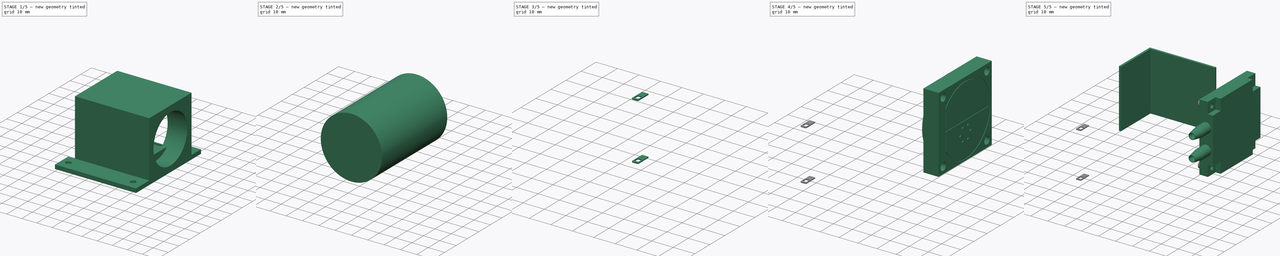
[diagram: build sequence overview — one tinted view per stage of 5, left to right]
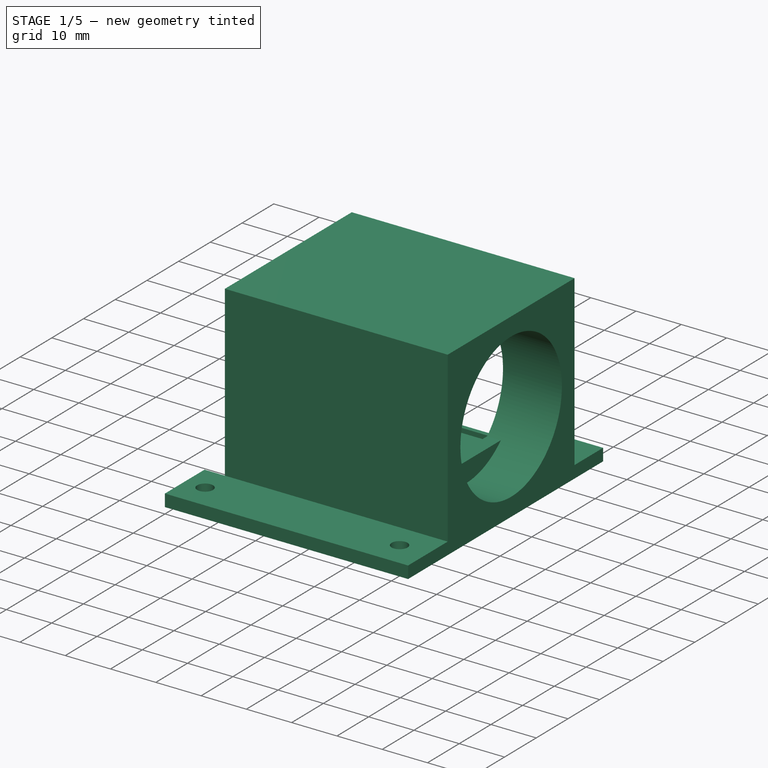
[diagram: stage 1 of 5 — iso view after this stage's code; geometry added in this stage tinted green]
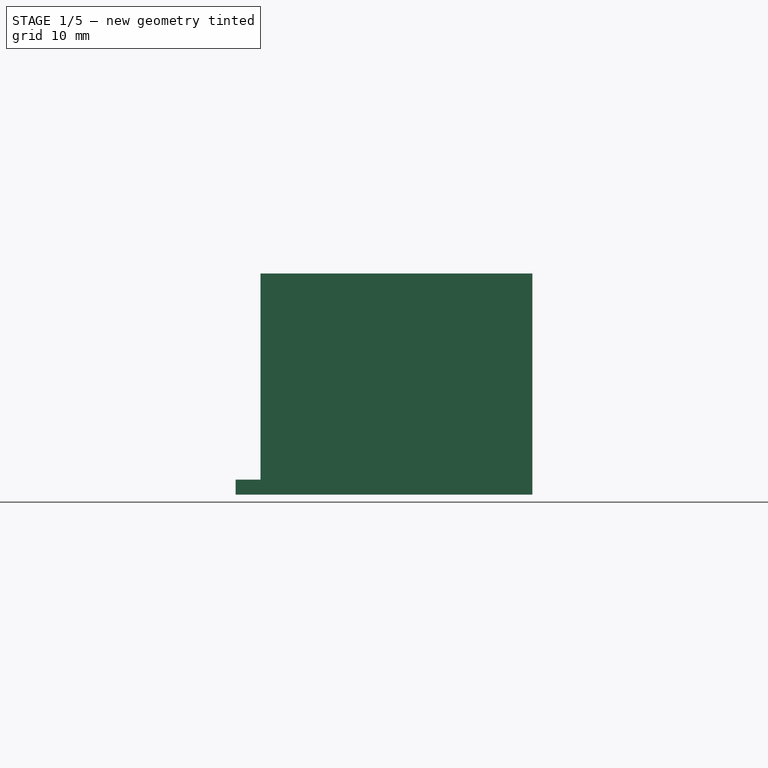
[diagram: stage 1 of 5 — front view after this stage's code; geometry added in this stage tinted green]
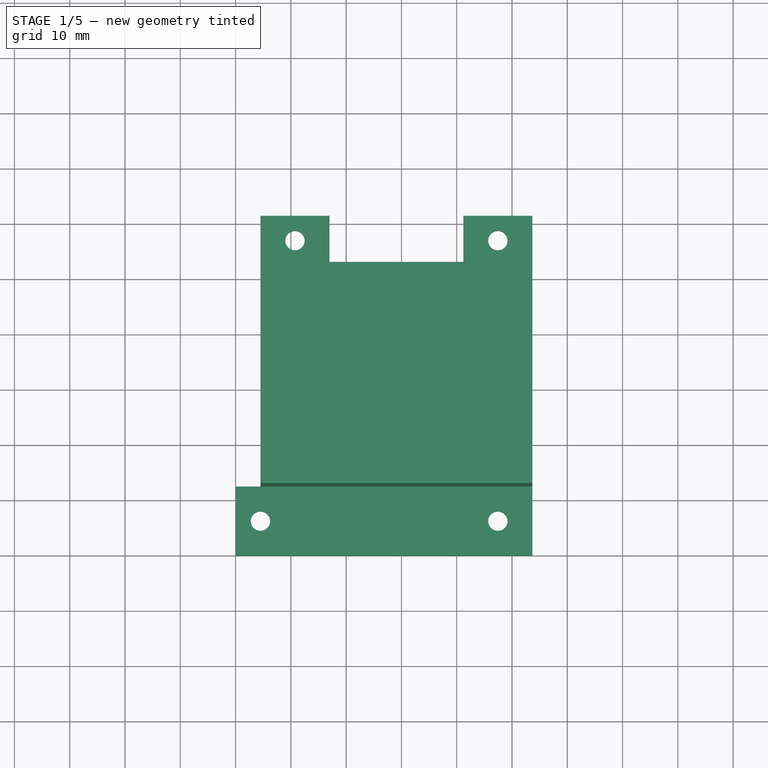
[diagram: stage 1 of 5 — top view after this stage's code; geometry added in this stage tinted green]
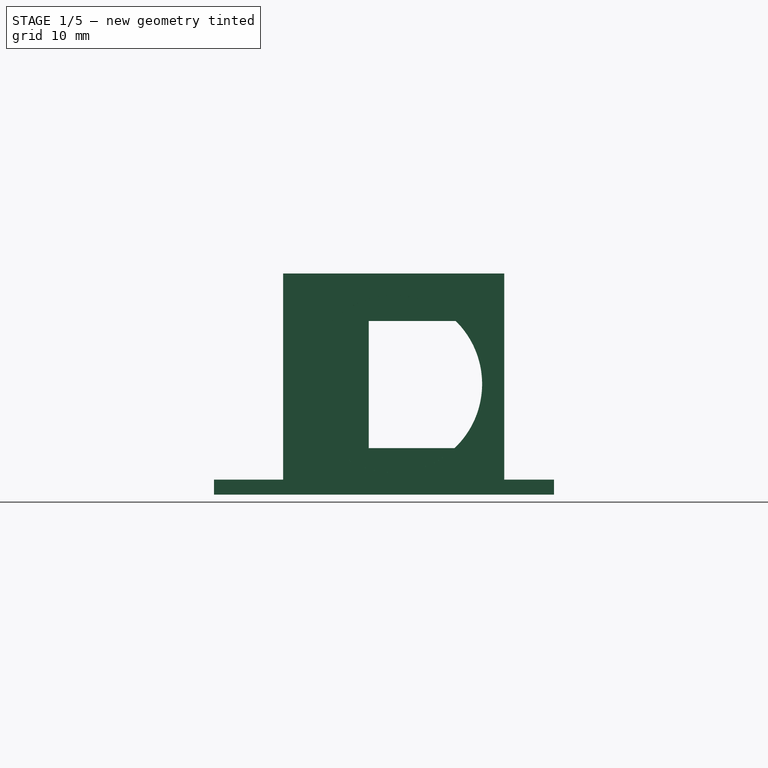
[diagram: stage 1 of 5 — right view after this stage's code; geometry added in this stage tinted green]
FCSTD DOCUMENT  (FreeCAD 0.20R27078 (Git))
Label: Mini vacuum pump
Comment: In the plastic case says:\n\nCK501-1BPM\n   DC12.0V\n 2021.12.20\n\nThe plastic parts are very accurate but the motor is not hehehe, someone please design a good DC motor.
License: Creative Commons Attribution
LicenseURL: http://creativecommons.org/licenses/by/4.0/
objects: Sketcher::SketchObject×30, PartDesign::Pad×15, PartDesign::Pocket×14, PartDesign::Body×7, PartDesign::ShapeBinder×6, PartDesign::Plane×6, PartDesign::Chamfer×3, PartDesign::Fillet×2, App::Part×1
note: 117 computed .brp shape members not serialized (recipe doc carries the construction recipe); baked Part::Feature solids carry a one-line shape summary decoded from their .brp

FEATURE [Sketcher::SketchObject] Sketch
  FullyConstrained = true
  MapMode = 5
  Support = -> [XY_Plane001]
  sketch-geometry (17):
    g0: LineSegment StartX=0 StartY=0 StartZ=0 EndX=53.7 EndY=0 EndZ=0
    g1: LineSegment StartX=53.7 StartY=0 StartZ=0 EndX=53.7 EndY=61.5 EndZ=0
    g2: LineSegment StartX=53.7 StartY=61.5 StartZ=0 EndX=41.2 EndY=61.5 EndZ=0
    g3: LineSegment StartX=41.2 StartY=61.5 StartZ=0 EndX=41.2 EndY=52.5 EndZ=0
    g4: LineSegment StartX=41.2 StartY=52.5 StartZ=0 EndX=17 EndY=52.5 EndZ=0
    g5: LineSegment StartX=17 StartY=52.5 StartZ=0 EndX=17 EndY=61.5 EndZ=0
    g6: LineSegment StartX=17 StartY=61.5 StartZ=0 EndX=4.5 EndY=61.5 EndZ=0
    g7: LineSegment StartX=4.5 StartY=61.5 StartZ=0 EndX=4.5 EndY=12.5 EndZ=0
    g8: LineSegment StartX=4.5 StartY=12.5 StartZ=0 EndX=0 EndY=12.5 EndZ=0
    g9: LineSegment StartX=0 StartY=12.5 StartZ=0 EndX=0 EndY=0 EndZ=0
    g10: Circle CenterX=4.5 CenterY=6.25 CenterZ=0 NormalX=0 NormalY=0 NormalZ=1 AngleXU=0 Radius=1.75
    g11: Circle CenterX=47.45 CenterY=6.25 CenterZ=0 NormalX=0 NormalY=0 NormalZ=1 AngleXU=0 Radius=1.75
    g12: Circle CenterX=47.45 CenterY=57 CenterZ=0 NormalX=0 NormalY=0 NormalZ=1 AngleXU=0 Radius=1.75
    g13: Circle CenterX=10.75 CenterY=57 CenterZ=0 NormalX=0 NormalY=0 NormalZ=1 AngleXU=0 Radius=1.75
    g14: LineSegment StartX=10.75 StartY=57 StartZ=0 EndX=10.75 EndY=61.5 EndZ=0
    g15: LineSegment StartX=47.45 StartY=57 StartZ=0 EndX=47.45 EndY=61.5 EndZ=0
    g16: LineSegment StartX=4.5 StartY=6.25 StartZ=0 EndX=0 EndY=6.25 EndZ=0
  constraints (48):
    c: Coincident(g-1,g0)
    c: PointOnObject(g0,g-1)
    c: Coincident(g0,g1)
    c: Vertical(g1)
    c: Coincident(g1,g2)
    c: Horizontal(g2)
    c: Coincident(g2,g3)
    c: Vertical(g3)
    c: Coincident(g3,g4)
    c: Horizontal(g4)
    c: Coincident(g4,g5)
    c: Vertical(g5)
    c: Coincident(g5,g6)
    c: Horizontal(g6)
    c: Coincident(g6,g7)
    c: Vertical(g7)
    c: Coincident(g7,g8)
    c: PointOnObject(g8,g-2)
    c: Coincident(g8,g9)
    c: Coincident(g9,g0)
    c: Horizontal(g8)
    c: Equal(g9,g6)
    c: Equal(g6,g2)
    c: DistanceY(g9,g9) = 12.5
    c: DistanceX(g0,g0) = 53.7
    c: DistanceX(g4,g4) = 24.2
    c: DistanceY(g1,g1) = 61.5
    c: Horizontal(g5,g2)
    c: DistanceY(g5,g5) = 9
    c: Horizontal(g10,g11)
    c: Horizontal(g12,g13)
    c: Vertical(g12,g11)
    c: Equal(g12,g10)
    c: Equal(g10,g11)
    c: Equal(g11,g13)
    c: Diameter(g11) = 3.5
    c: Coincident(g14,g13)
    c: Vertical(g14)
    c: Coincident(g15,g12)
    c: Vertical(g15)
    c: Symmetric(g5,g6,g14)
    c: Symmetric(g1,g2,g15)
    c: DistanceY(g12,g1) = 4.5
    c: Coincident(g16,g10)
    c: Horizontal(g16)
    c: Symmetric(g8,g0,g16)
    c: DistanceX(g16,g16) = 4.5
    c: DistanceY(g7,g4) = 40
FEATURE [PartDesign::Pad] Pad
  Direction = (0,0,1)
  Length = 2.7
  Length2 = 100
  Profile = -> Sketch
  ReferenceAxis = -> Sketch [N_Axis]
  Type = 0
FEATURE [Sketcher::SketchObject] Sketch001
  ExternalGeometry = -> [Pad]
  FullyConstrained = true
  MapMode = 5
  Placement = pos=(0,0,2.7) rot=(0,0,1;0rad)
  Support = -> [Pad]
  sketch-geometry (4):
    g0: LineSegment StartX=4.5 StartY=12.5 StartZ=0 EndX=53.7 EndY=12.5 EndZ=0
    g1: LineSegment StartX=53.7 StartY=12.5 StartZ=0 EndX=53.7 EndY=52.5 EndZ=0
    g2: LineSegment StartX=53.7 StartY=52.5 StartZ=0 EndX=4.5 EndY=52.5 EndZ=0
    g3: LineSegment StartX=4.5 StartY=52.5 StartZ=0 EndX=4.5 EndY=12.5 EndZ=0
  constraints (11):
    c: Coincident(g0,g1)
    c: Coincident(g1,g2)
    c: Coincident(g2,g3)
    c: Coincident(g3,g0)
    c: Horizontal(g0)
    c: Horizontal(g2)
    c: Vertical(g1)
    c: Vertical(g3)
    c: Coincident(g0,g-4)
    c: PointOnObject(g1,g-3)
    c: Horizontal(g1,g-5)
FEATURE [PartDesign::Pad] Pad001
  BaseFeature = -> Pad
  Direction = (0,0,1)
  Length = 37.3
  Length2 = 100
  Profile = -> Sketch001
  ReferenceAxis = -> Sketch001 [N_Axis]
  Type = 0
FEATURE [Sketcher::SketchObject] Sketch009
  ExternalGeometry = -> [Pad001]
  FullyConstrained = true
  MapMode = 5
  Placement = pos=(4.5,0,0) rot=(0.57735,-0.57735,-0.57735;2.0944rad)
  Support = -> [Pad001]
  sketch-geometry (4):
    g0: LineSegment StartX=-52.5 StartY=2.7 StartZ=0 EndX=-26.5 EndY=2.7 EndZ=0
    g1: LineSegment StartX=-26.5 StartY=2.7 StartZ=0 EndX=-26.5 EndY=37.1 EndZ=0
    g2: LineSegment StartX=-26.5 StartY=37.1 StartZ=0 EndX=-52.5 EndY=37.1 EndZ=0
    g3: LineSegment StartX=-52.5 StartY=37.1 StartZ=0 EndX=-52.5 EndY=2.7 EndZ=0
  constraints (11):
    c: Coincident(g0,g1)
    c: Coincident(g1,g2)
    c: Coincident(g2,g3)
    c: Coincident(g3,g0)
    c: Horizontal(g0)
    c: Horizontal(g2)
    c: Vertical(g1)
    c: Vertical(g3)
    c: Coincident(g0,g-4)
    c: DistanceX(g0,g-5) = 14
    c: DistanceY(g1,g1) = 34.4
FEATURE [PartDesign::Pocket] Pocket
  BaseFeature = -> Pad001
  Direction = (1,0,0)
  Length = 1.2
  Length2 = 100
  Profile = -> Sketch009
  ReferenceAxis = -> Sketch009 [N_Axis]
  Type = 0
FEATURE [Sketcher::SketchObject] Sketch010
  ExternalGeometry = -> [Pocket]
  FullyConstrained = true
  MapMode = 5
  Placement = pos=(0,52.5,0) rot=(0,0.707107,0.707107;3.14159rad)
  Support = -> [Pocket]
  sketch-geometry (4):
    g0: LineSegment StartX=-4.5 StartY=2.7 StartZ=0 EndX=-43.7 EndY=2.7 EndZ=0
    g1: LineSegment StartX=-43.7 StartY=2.7 StartZ=0 EndX=-43.7 EndY=37.1 EndZ=0
    g2: LineSegment StartX=-43.7 StartY=37.1 StartZ=0 EndX=-4.5 EndY=37.1 EndZ=0
    g3: LineSegment StartX=-4.5 StartY=37.1 StartZ=0 EndX=-4.5 EndY=2.7 EndZ=0
  constraints (10):
    c: Coincident(g0,g1)
    c: Coincident(g1,g2)
    c: Coincident(g2,g3)
    c: Coincident(g3,g0)
    c: Horizontal(g0)
    c: Horizontal(g2)
    c: Vertical(g1)
    c: Coincident(g0,g-4)
    c: Coincident(g2,g-4)
    c: DistanceX(g-3,g1) = 10
FEATURE [PartDesign::Pocket] Pocket001
  BaseFeature = -> Pocket
  Direction = (0,-1,2e-16)
  Length = 1.2
  Length2 = 100
  Profile = -> Sketch010
  ReferenceAxis = -> Sketch010 [N_Axis]
  Type = 0
FEATURE [Sketcher::SketchObject] Sketch011
  ExternalGeometry = -> [Pocket001]
  FullyConstrained = true
  MapMode = 5
  Placement = pos=(53.7,0,0) rot=(0.57735,0.57735,0.57735;2.0944rad)
  Support = -> [Pocket001]
  sketch-geometry (3):
    g0: Circle CenterX=32.5 CenterY=20 CenterZ=0 NormalX=0 NormalY=0 NormalZ=1 AngleXU=0 Radius=16
    g1: LineSegment StartX=32.5 StartY=20 StartZ=0 EndX=52.5 EndY=20 EndZ=0
    g2: LineSegment StartX=32.5 StartY=20 StartZ=0 EndX=32.5 EndY=40 EndZ=0
  constraints (8):
    c: Coincident(g1,g0)
    c: PointOnObject(g1,g-3)
    c: Horizontal(g1)
    c: Coincident(g2,g0)
    c: Vertical(g2)
    c: Symmetric(g-4,g-3,g2)
    c: DistanceY(g1,g-3) = 20
    c: Diameter(g0) = 32
FEATURE [PartDesign::Pocket] Pocket002
  BaseFeature = -> Pocket001
  Direction = (-1,0,0)
  Length = 12
  Length2 = 100
  Profile = -> Sketch011
  ReferenceAxis = -> Sketch011 [N_Axis]
  Type = 0
FEATURE [Sketcher::SketchObject] Sketch012
  ExternalGeometry = -> [Pocket002]
  FullyConstrained = true
  MapMode = 5
  Placement = pos=(5.7,0,0) rot=(0.57735,-0.57735,-0.57735;2.0944rad)
  Support = -> [Pocket002]
  sketch-geometry (8):
    g0: LineSegment StartX=-51.3 StartY=4.7 StartZ=0 EndX=-50.3 EndY=4.7 EndZ=0
    g1: LineSegment StartX=-50.3 StartY=4.7 StartZ=0 EndX=-50.3 EndY=3.7 EndZ=0
    g2: LineSegment StartX=-50.3 StartY=3.7 StartZ=0 EndX=-28 EndY=3.7 EndZ=0
    g3: LineSegment StartX=-28 StartY=3.7 StartZ=0 EndX=-28 EndY=36.1 EndZ=0
    g4: LineSegment StartX=-28 StartY=36.1 StartZ=0 EndX=-50.3 EndY=36.1 EndZ=0
    g5: LineSegment StartX=-50.3 StartY=36.1 StartZ=0 EndX=-50.3 EndY=35.1 EndZ=0
    g6: LineSegment StartX=-50.3 StartY=35.1 StartZ=0 EndX=-51.3 EndY=35.1 EndZ=0
    g7: LineSegment StartX=-51.3 StartY=35.1 StartZ=0 EndX=-51.3 EndY=4.7 EndZ=0
  constraints (24):
    c: PointOnObject(g0,g-3)
    c: Horizontal(g0)
    c: Coincident(g0,g1)
    c: Vertical(g1)
    c: Coincident(g1,g2)
    c: Horizontal(g2)
    c: Coincident(g2,g3)
    c: Vertical(g3)
    c: Coincident(g3,g4)
    c: Horizontal(g4)
    c: Coincident(g4,g5)
    c: Vertical(g5)
    c: Coincident(g5,g6)
    c: PointOnObject(g6,g-3)
    c: Horizontal(g6)
    c: Coincident(g6,g7)
    c: Coincident(g7,g0)
    c: Equal(g5,g6)
    c: Equal(g6,g0)
    c: Equal(g0,g1)
    c: DistanceY(g-3,g1) = 1
    c: DistanceY(g4,g-3) = 1
    c: DistanceX(g3,g-4) = 1.5
    c: DistanceX(g6,g6) = 1
FEATURE [PartDesign::Pocket] Pocket003
  BaseFeature = -> Pocket002
  Direction = (1,0,0)
  Length = 38
  Length2 = 100
  Profile = -> Sketch012
  ReferenceAxis = -> Sketch012 [N_Axis]
  Type = 0
FEATURE [Sketcher::SketchObject] Sketch013
  ExternalGeometry = -> [Pocket003]
  FullyConstrained = true
  MapMode = 5
  Placement = pos=(43.7,0,0) rot=(0.57735,-0.57735,-0.57735;2.0944rad)
  Support = -> [Pocket003]
  sketch-geometry (12):
    g0: LineSegment StartX=-43.7268 StartY=31.4 StartZ=0 EndX=-28 EndY=31.4 EndZ=0
    g1: LineSegment StartX=-28 StartY=31.4 StartZ=0 EndX=-28 EndY=36.1 EndZ=0
    g2: LineSegment StartX=-28 StartY=36.1 StartZ=0 EndX=-48.5887 EndY=36.1 EndZ=0
    g3: LineSegment StartX=-48.5887 StartY=36.1 StartZ=0 EndX=-48.5887 EndY=34.8113 EndZ=0
    g4: LineSegment StartX=-48.5887 StartY=34.8113 StartZ=0 EndX=-49.5 EndY=33.9 EndZ=0
    g5: LineSegment StartX=-49.5 StartY=33.9 StartZ=0 EndX=-49.5 EndY=5.9 EndZ=0
    g6: LineSegment StartX=-49.5 StartY=5.9 StartZ=0 EndX=-48.5887 EndY=4.98873 EndZ=0
    g7: LineSegment StartX=-48.5887 StartY=4.98873 StartZ=0 EndX=-48.5887 EndY=3.7 EndZ=0
    g8: LineSegment StartX=-48.5887 StartY=3.7 StartZ=0 EndX=-28 EndY=3.7 EndZ=0
    g9: LineSegment StartX=-28 StartY=3.7 StartZ=0 EndX=-28 EndY=8.4 EndZ=0
    g10: LineSegment StartX=-28 StartY=8.4 StartZ=0 EndX=-43.52 EndY=8.4 EndZ=0
    g11: ArcOfCircle CenterX=-32.5 CenterY=20 CenterZ=0 NormalX=0 NormalY=0 NormalZ=1 AngleXU=0 Radius=16 StartAngle=2.34854 EndAngle=3.95263
  constraints (34):
    c: PointOnObject(g0,g-7)
    c: Horizontal(g0)
    c: Coincident(g0,g1)
    c: Coincident(g1,g-7)
    c: Coincident(g1,g2)
    c: PointOnObject(g2,g-3)
    c: Coincident(g2,g3)
    c: Coincident(g3,g4)
    c: Coincident(g4,g5)
    c: Vertical(g5)
    c: Coincident(g5,g6)
    c: Coincident(g6,g7)
    c: PointOnObject(g7,g-4)
    c: Vertical(g7)
    c: Coincident(g7,g8)
    c: Coincident(g8,g-7)
    c: Coincident(g8,g9)
    c: PointOnObject(g9,g-7)
    c: Coincident(g9,g10)
    c: Horizontal(g10)
    c: Coincident(g11,g-6)
    c: PointOnObject(g11,g-6)
    c: Coincident(g10,g11)
    c: Coincident(g0,g11)
    c: DistanceY(g1,g1) = 4.7
    c: Equal(g9,g1)
    c: Vertical(g3)
    c: Vertical(g6,g3)
    c: Angle(g4) = -2.35619
    c: Perpendicular(g6,g4)
    c: Equal(g7,g6)
    c: DistanceY(g5,g5) = 28
    c: DistanceX(g-8,g4) = 3
    c: Equal(g4,g3)
FEATURE [PartDesign::Pad] Pad004
  BaseFeature = -> Pocket003
  Direction = (-1,0,0)
  Length = 3
  Length2 = 100
  Profile = -> Sketch013
  ReferenceAxis = -> Sketch013 [N_Axis]
  Type = 0
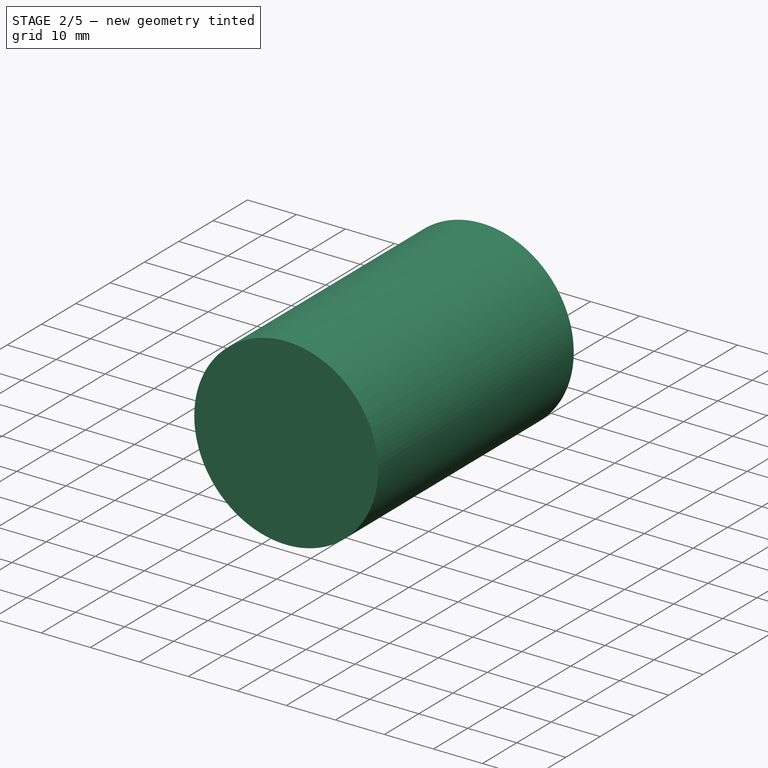
[diagram: stage 2 of 5 — iso view after this stage's code; geometry added in this stage tinted green]
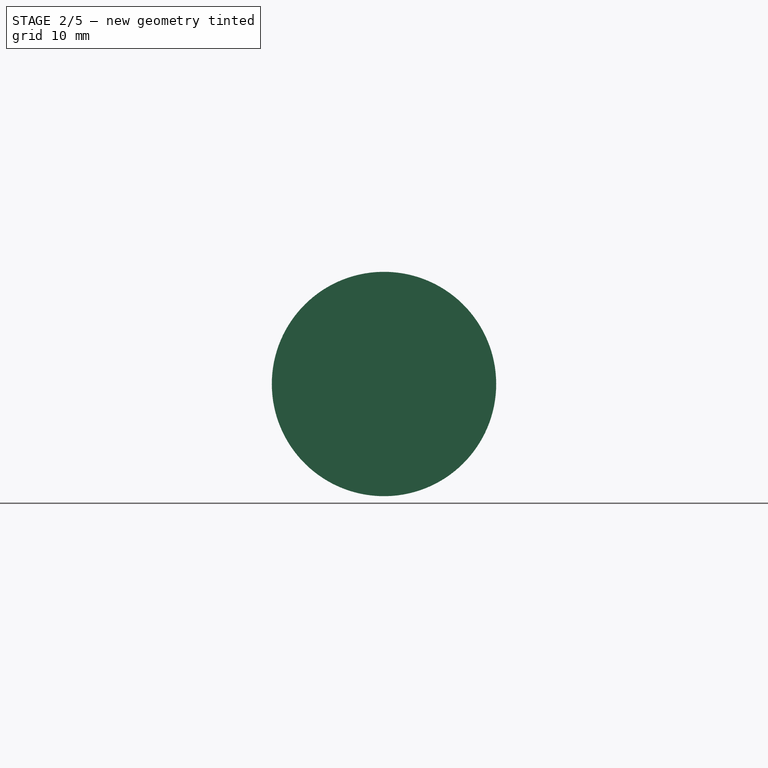
[diagram: stage 2 of 5 — front view after this stage's code; geometry added in this stage tinted green]
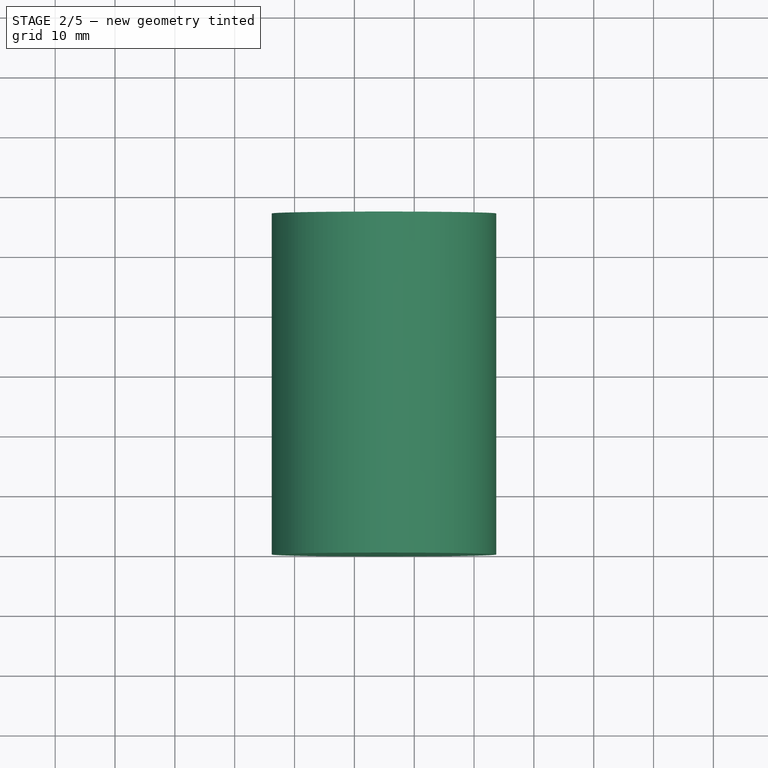
[diagram: stage 2 of 5 — top view after this stage's code; geometry added in this stage tinted green]
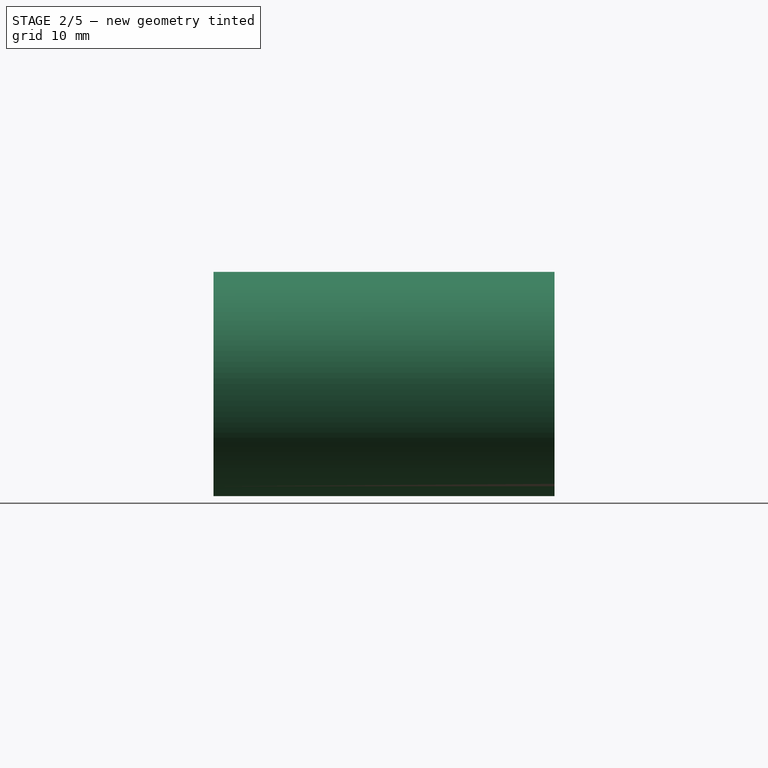
[diagram: stage 2 of 5 — right view after this stage's code; geometry added in this stage tinted green]
FEATURE [Sketcher::SketchObject] Sketch014
  ExternalGeometry = -> [Pad004]
  FullyConstrained = true
  MapMode = 5
  Placement = pos=(53.7,0,0) rot=(0.57735,0.57735,0.57735;2.0944rad)
  Support = -> [Pad004]
  sketch-geometry (2):
    g0: Circle CenterX=32.5 CenterY=20 CenterZ=0 NormalX=0 NormalY=0 NormalZ=1 AngleXU=0 Radius=19
    g1: Circle CenterX=32.5 CenterY=20 CenterZ=0 NormalX=0 NormalY=0 NormalZ=1 AngleXU=0 Radius=17
  constraints (4):
    c: Coincident(g0,g-3)
    c: Coincident(g1,g0)
    c: Diameter(g0) = 38
    c: Diameter(g1) = 34
FEATURE [PartDesign::Pocket] Pocket004
  BaseFeature = -> Pad004
  Direction = (-1,0,0)
  Length = 3
  Length2 = 100
  Profile = -> Sketch014
  ReferenceAxis = -> Sketch014 [N_Axis]
  Type = 0
FEATURE [Sketcher::SketchObject] Sketch015
  ExternalGeometry = -> [Pocket004]
  FullyConstrained = true
  MapMode = 5
  Placement = pos=(53.7,0,0) rot=(0.57735,0.57735,0.57735;2.0944rad)
  Support = -> [Pocket004]
  sketch-geometry (13):
    g0: LineSegment StartX=16.05 StartY=3.55 StartZ=0 EndX=16.05 EndY=36.45 EndZ=0
    g1: LineSegment StartX=16.05 StartY=36.45 StartZ=0 EndX=48.95 EndY=36.45 EndZ=0
    g2: LineSegment StartX=48.95 StartY=36.45 StartZ=0 EndX=48.95 EndY=3.55 EndZ=0
    g3: LineSegment StartX=48.95 StartY=3.55 StartZ=0 EndX=16.05 EndY=3.55 EndZ=0
    g4: GeomPoint X=32.5 Y=20 Z=0
    g5: Circle CenterX=16.05 CenterY=36.45 CenterZ=0 NormalX=0 NormalY=0 NormalZ=1 AngleXU=0 Radius=2
    g6: Circle CenterX=16.05 CenterY=36.45 CenterZ=0 NormalX=0 NormalY=0 NormalZ=1 AngleXU=0 Radius=1
    g7: Circle CenterX=48.95 CenterY=36.45 CenterZ=0 NormalX=0 NormalY=0 NormalZ=1 AngleXU=0 Radius=1
    g8: Circle CenterX=48.95 CenterY=36.45 CenterZ=0 NormalX=0 NormalY=0 NormalZ=1 AngleXU=0 Radius=2
    g9: Circle CenterX=48.95 CenterY=3.55 CenterZ=0 NormalX=0 NormalY=0 NormalZ=1 AngleXU=0 Radius=1
    g10: Circle CenterX=48.95 CenterY=3.55 CenterZ=0 NormalX=0 NormalY=0 NormalZ=1 AngleXU=0 Radius=2
    g11: Circle CenterX=16.05 CenterY=3.55 CenterZ=0 NormalX=0 NormalY=0 NormalZ=1 AngleXU=0 Radius=1
    g12: Circle CenterX=16.05 CenterY=3.55 CenterZ=0 NormalX=0 NormalY=0 NormalZ=1 AngleXU=0 Radius=2
  constraints (28):
    c: Coincident(g0,g1)
    c: Coincident(g1,g2)
    c: Coincident(g2,g3)
    c: Coincident(g3,g0)
    c: Horizontal(g1)
    c: Horizontal(g3)
    c: Vertical(g0)
    c: Vertical(g2)
    c: Symmetric(g1,g0,g4)
    c: Coincident(g4,g-3)
    c: Equal(g2,g1)
    c: Coincident(g5,g0)
    c: Coincident(g6,g5)
    c: Coincident(g7,g1)
    c: Coincident(g8,g7)
    c: Coincident(g9,g2)
    c: Coincident(g10,g9)
    c: Coincident(g11,g0)
    c: Coincident(g12,g11)
    c: Equal(g11,g9)
    c: Equal(g9,g7)
    c: Equal(g7,g6)
    c: Equal(g5,g8)
    c: Equal(g8,g12)
    c: Equal(g12,g10)
    c: Diameter(g10) = 4
    c: Diameter(g9) = 2
    c: DistanceX(g1,g1) = 32.9
FEATURE [PartDesign::Pad] Pad005
  BaseFeature = -> Pocket004
  Direction = (1,0,0)
  Length = 2
  Length2 = 100
  Profile = -> Sketch015
  ReferenceAxis = -> Sketch015 [N_Axis]
  Type = 0
FEATURE [Sketcher::SketchObject] Sketch016
  ExternalGeometry = -> [Pad005]
  FullyConstrained = true
  MapMode = 5
  Placement = pos=(41.7,0,0) rot=(0.57735,0.57735,0.57735;2.0944rad)
  Support = -> [Pad005]
  sketch-geometry (2):
    g0: LineSegment StartX=28 StartY=4.64585 StartZ=0 EndX=28 EndY=35.3542 EndZ=0
    g1: ArcOfCircle CenterX=32.5 CenterY=20 CenterZ=0 NormalX=0 NormalY=0 NormalZ=1 AngleXU=0 Radius=16 StartAngle=1.85589 EndAngle=4.42729
  constraints (6):
    c: PointOnObject(g0,g-3)
    c: PointOnObject(g0,g-3)
    c: Coincident(g1,g-4)
    c: PointOnObject(g1,g-4)
    c: Coincident(g1,g0)
    c: Coincident(g0,g1)
FEATURE [PartDesign::Pad] Pad006
  BaseFeature = -> Pad005
  Direction = (1,0,0)
  Length = 4
  Length2 = 100
  Profile = -> Sketch016
  ReferenceAxis = -> Sketch016 [N_Axis]
  Type = 0
FEATURE [PartDesign::Chamfer] Chamfer
  Angle = 45
  Base = -> Pad006 [Edge192]
  BaseFeature = -> Pad006
  ChamferType = 0
  FlipDirection = false
  Size = 3
  Size2 = 1
  SupportTransform = false
FEATURE [Sketcher::SketchObject] Sketch017
  ExternalGeometry = -> [Chamfer]
  FullyConstrained = true
  MapMode = 5
  Placement = pos=(0,0,0) rot=(1,0,0;1.5708rad)
  Support = -> [Chamfer]
  sketch-geometry (3):
    g0: Circle CenterX=24.95 CenterY=19.55 CenterZ=0 NormalX=0 NormalY=0 NormalZ=1 AngleXU=0 Radius=18.75
    g1: LineSegment StartX=24.95 StartY=19.55 StartZ=0 EndX=6.2 EndY=19.55 EndZ=0
    g2: LineSegment StartX=24.95 StartY=19.55 StartZ=0 EndX=24.95 EndY=38.3 EndZ=0
  constraints (9):
    c: Diameter(g0) = 37.5
    c: Coincident(g1,g0)
    c: PointOnObject(g1,g0)
    c: Horizontal(g1)
    c: Coincident(g2,g0)
    c: PointOnObject(g2,g0)
    c: Vertical(g2)
    c: DistanceX(g-3,g1) = 1.7
    c: DistanceY(g2,g-4) = 1.7
FEATURE [PartDesign::Pocket] Pocket005
  BaseFeature = -> Chamfer
  Direction = (0,1,-2e-16)
  Length = 27
  Length2 = 100
  Profile = -> Sketch017
  ReferenceAxis = -> Sketch017 [N_Axis]
  Type = 0
FEATURE [Sketcher::SketchObject] Sketch018
  ExternalGeometry = -> [Pocket005]
  FullyConstrained = true
  MapMode = 5
  Placement = pos=(0,27,-5.9e-15) rot=(1,0,0;1.5708rad)
  Support = -> [Pocket005]
  sketch-geometry (1):
    g0: Circle CenterX=24.95 CenterY=19.55 CenterZ=0 NormalX=0 NormalY=0 NormalZ=1 AngleXU=0 Radius=5
  constraints (2):
    c: Coincident(g0,g-3)
    c: Diameter(g0) = 10
FEATURE [PartDesign::Pocket] Pocket006
  BaseFeature = -> Pocket005
  Direction = (0,1,-2e-16)
  Length = 5
  Length2 = 100
  Profile = -> Sketch018
  ReferenceAxis = -> Sketch018 [N_Axis]
  Type = 2
FEATURE [PartDesign::Body] Body003  label="Top"
  Group = -> [DatumPlane002,ShapeBinder002,Sketch026,Sketch027,Pad010,Sketch028,Pocket011,Sketch029,Pad011,Sketch030,Pad012,Sketch031,Pad013,Chamfer002]
  Origin = -> Origin004
  Tip = -> Chamfer002
FEATURE [PartDesign::Plane] DatumPlane003
  AttachmentOffset = pos=(0,0,-27) rot=(0,0,1;0rad)
  Length = 81.8861
  MapMode = 5
  Placement = pos=(0,27,6e-15) rot=(1,0,0;1.5708rad)
  ResizeMode = 0
  Support = -> [XZ_Plane005]
  Width = 76.4586
FEATURE [PartDesign::ShapeBinder] ShapeBinder003
  Support = -> [Pocket006]
  TraceSupport = false
FEATURE [Sketcher::SketchObject] Sketch032
  ExternalGeometry = -> [ShapeBinder003]
  FullyConstrained = true
  MapMode = 5
  Placement = pos=(0,27,6e-15) rot=(1,0,0;1.5708rad)
  Support = -> [DatumPlane003]
  sketch-geometry (1):
    g0: Circle CenterX=24.95 CenterY=19.55 CenterZ=0 NormalX=0 NormalY=0 NormalZ=1 AngleXU=0 Radius=18.75
  constraints (2):
    c: Coincident(g0,g-3)
    c: Diameter(g0) = 37.5
FEATURE [PartDesign::Pad] Pad014
  Direction = (0,-1,-2e-16)
  Length = 57
  Length2 = 100
  Placement = pos=(0,27,6e-15) rot=(1,0,0;1.5708rad)
  Profile = -> Sketch032
  ReferenceAxis = -> Sketch032 [N_Axis]
  Type = 0
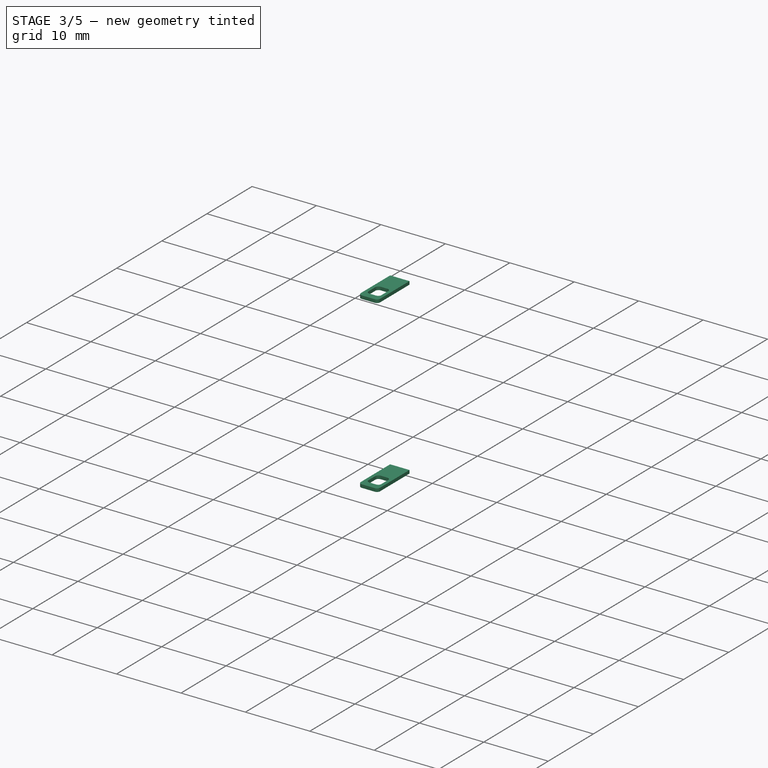
[diagram: stage 3 of 5 — iso view after this stage's code; geometry added in this stage tinted green]
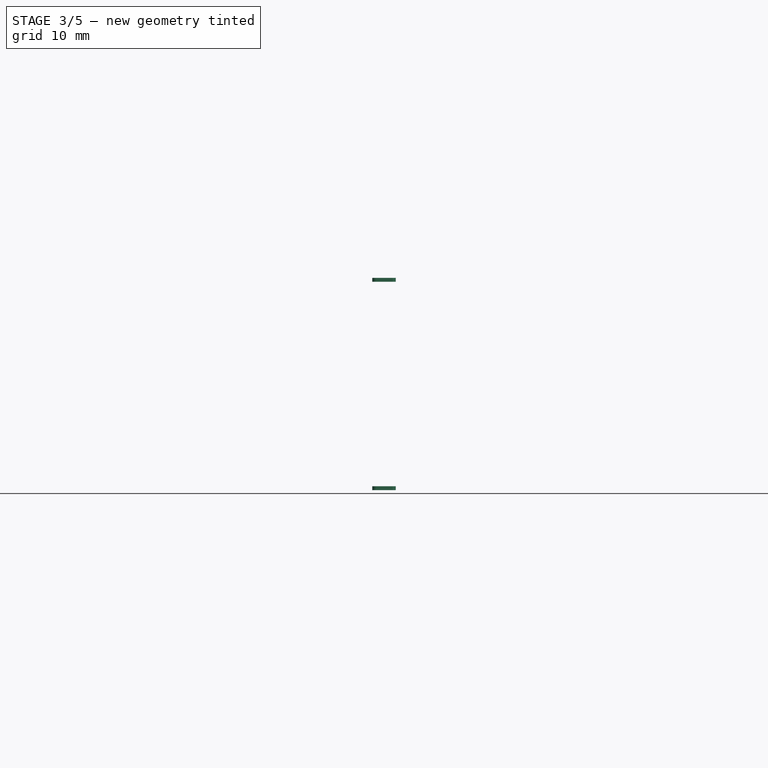
[diagram: stage 3 of 5 — front view after this stage's code; geometry added in this stage tinted green]
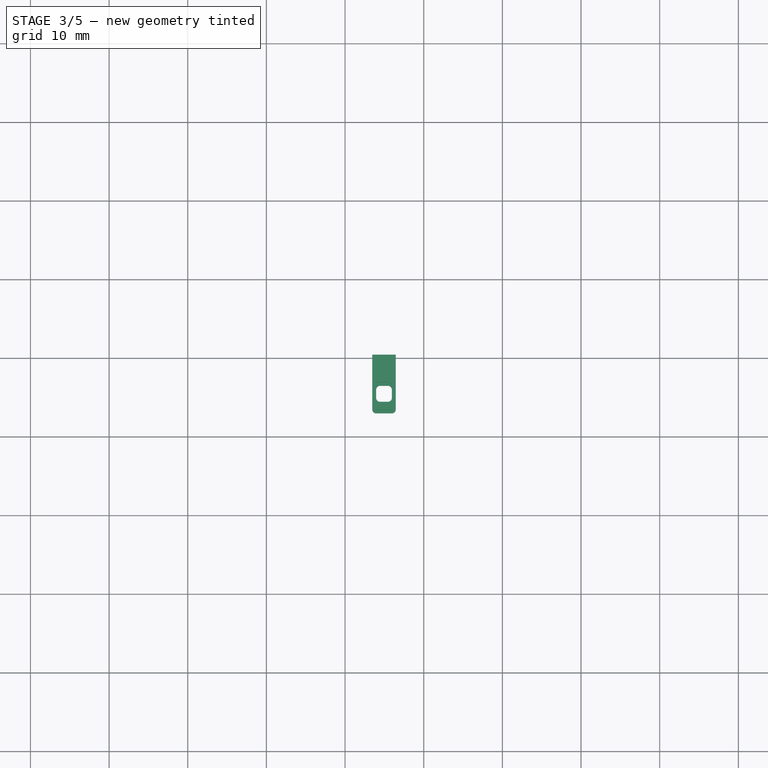
[diagram: stage 3 of 5 — top view after this stage's code; geometry added in this stage tinted green]
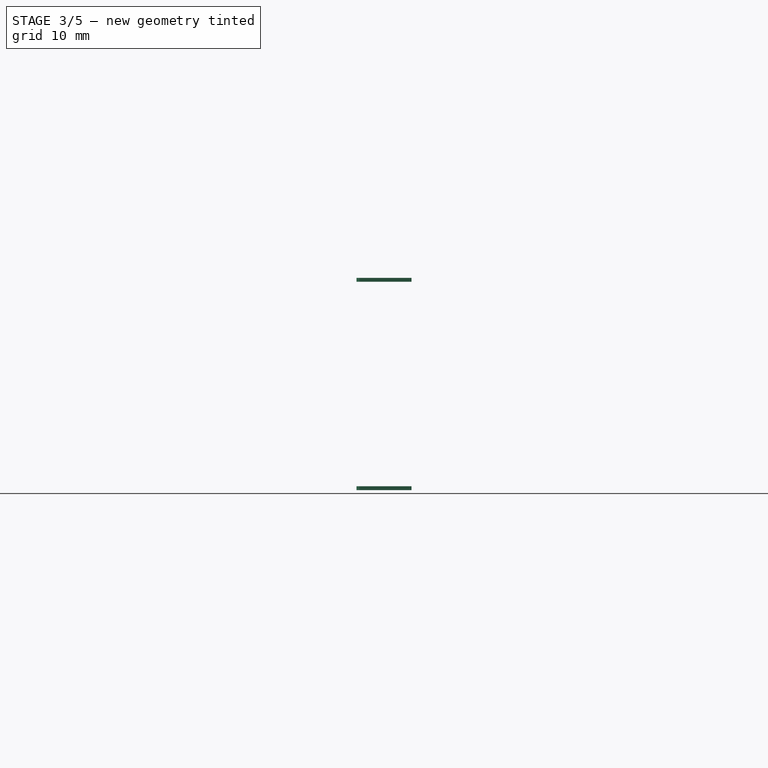
[diagram: stage 3 of 5 — right view after this stage's code; geometry added in this stage tinted green]
FEATURE [PartDesign::Body] Body004  label="Motor"
  Group = -> [DatumPlane003,Sketch032,ShapeBinder003,Pad014]
  Origin = -> Origin005
  Tip = -> Pad014
FEATURE [PartDesign::ShapeBinder] ReferencePad014
  Placement = pos=(0,-57,-1.27e-14) rot=(0,0,1;0rad)
  Support = -> [Pad014]
  TraceSupport = false
FEATURE [PartDesign::Plane] DatumPlane004
  Length = 62.3801
  MapMode = 5
  Placement = pos=(0,-30,-6.7e-15) rot=(1,0,0;1.5708rad)
  ResizeMode = 0
  Support = -> [ReferencePad014]
  Width = 68.9801
FEATURE [Sketcher::SketchObject] Sketch033
  ExternalGeometry = -> [ReferencePad014]
  FullyConstrained = true
  MapMode = 5
  Placement = pos=(0,-30,-6.7e-15) rot=(1,0,0;1.5708rad)
  Support = -> [DatumPlane004]
  sketch-geometry (5):
    g0: LineSegment StartX=24.95 StartY=19.55 StartZ=0 EndX=24.95 EndY=32.55 EndZ=0
    g1: LineSegment StartX=23.45 StartY=33.05 StartZ=0 EndX=26.45 EndY=33.05 EndZ=0
    g2: LineSegment StartX=26.45 StartY=33.05 StartZ=0 EndX=26.45 EndY=32.55 EndZ=0
    g3: LineSegment StartX=26.45 StartY=32.55 StartZ=0 EndX=23.45 EndY=32.55 EndZ=0
    g4: LineSegment StartX=23.45 StartY=32.55 StartZ=0 EndX=23.45 EndY=33.05 EndZ=0
  constraints (14):
    c: Coincident(g0,g-3)
    c: Vertical(g0)
    c: Coincident(g1,g2)
    c: Coincident(g2,g3)
    c: Coincident(g3,g4)
    c: Coincident(g4,g1)
    c: Horizontal(g1)
    c: Horizontal(g3)
    c: Vertical(g2)
    c: Vertical(g4)
    c: DistanceY(g0,g0) = 13
    c: DistanceY(g2,g2) = 0.5
    c: DistanceX(g1,g1) = 3
    c: Symmetric(g3,g2,g0)
FEATURE [PartDesign::Pad] Pad015
  Direction = (0,-1,-2e-16)
  Length = 7
  Length2 = 100
  Placement = pos=(0,-30,-6.7e-15) rot=(1,0,0;1.5708rad)
  Profile = -> Sketch033
  ReferenceAxis = -> Sketch033 [N_Axis]
  Type = 0
FEATURE [PartDesign::ShapeBinder] ReferencePad014001
  Placement = pos=(0,-57,-1.27e-14) rot=(0,0,1;0rad)
  Support = -> [Pad014]
  TraceSupport = false
FEATURE [PartDesign::Plane] DatumPlane005
  Length = 81.8874
  MapMode = 5
  Placement = pos=(0,-30,-6.7e-15) rot=(1,0,0;1.5708rad)
  ResizeMode = 0
  Support = -> [ReferencePad014001]
  Width = 76.4722
FEATURE [Sketcher::SketchObject] Sketch034
  ExternalGeometry = -> [ReferencePad014001]
  FullyConstrained = true
  MapMode = 5
  Placement = pos=(0,-30,-6.7e-15) rot=(1,0,0;1.5708rad)
  Support = -> [DatumPlane005]
  sketch-geometry (5):
    g0: LineSegment StartX=23.45 StartY=6.55 StartZ=0 EndX=26.45 EndY=6.55 EndZ=0
    g1: LineSegment StartX=26.45 StartY=6.55 StartZ=0 EndX=26.45 EndY=6.05 EndZ=0
    g2: LineSegment StartX=26.45 StartY=6.05 StartZ=0 EndX=23.45 EndY=6.05 EndZ=0
    g3: LineSegment StartX=23.45 StartY=6.05 StartZ=0 EndX=23.45 EndY=6.55 EndZ=0
    g4: LineSegment StartX=24.95 StartY=19.55 StartZ=0 EndX=24.95 EndY=6.55 EndZ=0
  constraints (14):
    c: Coincident(g0,g1)
    c: Coincident(g1,g2)
    c: Coincident(g2,g3)
    c: Coincident(g3,g0)
    c: Horizontal(g0)
    c: Horizontal(g2)
    c: Vertical(g1)
    c: Vertical(g3)
    c: Coincident(g4,g-3)
    c: Vertical(g4)
    c: DistanceX(g2,g2) = 3
    c: DistanceY(g1,g1) = 0.5
    c: DistanceY(g4,g4) = 13
    c: Symmetric(g0,g0,g4)
FEATURE [PartDesign::Pad] Pad016
  Direction = (0,-1,-2e-16)
  Length = 7
  Length2 = 100
  Placement = pos=(0,-30,-6.7e-15) rot=(1,0,0;1.5708rad)
  Profile = -> Sketch034
  ReferenceAxis = -> Sketch034 [N_Axis]
  Type = 0
FEATURE [Sketcher::SketchObject] Sketch035
  ExternalGeometry = -> [Pad016]
  FullyConstrained = true
  MapMode = 5
  Placement = pos=(0,-30,6.05) rot=(1,0,0;3.14159rad)
  Support = -> [Pad016]
  sketch-geometry (11):
    g0: ArcOfCircle CenterX=24.45 CenterY=5.5 CenterZ=0 NormalX=0 NormalY=0 NormalZ=1 AngleXU=0 Radius=0.5 StartAngle=1.5708 EndAngle=3.14159
    g1: LineSegment StartX=24.45 StartY=6 StartZ=0 EndX=25.45 EndY=6 EndZ=0
    g2: ArcOfCircle CenterX=25.45 CenterY=5.5 CenterZ=0 NormalX=0 NormalY=0 NormalZ=1 AngleXU=0 Radius=0.5 StartAngle=0 EndAngle=1.5708
    g3: LineSegment StartX=25.95 StartY=5.5 StartZ=0 EndX=25.95 EndY=4 EndZ=0
    g4: ArcOfCircle CenterX=25.45 CenterY=4 CenterZ=0 NormalX=0 NormalY=0 NormalZ=1 AngleXU=0 Radius=0.5 StartAngle=4.71239 EndAngle=6.28319
    g5: LineSegment StartX=25.45 StartY=3.5 StartZ=0 EndX=24.45 EndY=3.5 EndZ=0
    g6: ArcOfCircle CenterX=24.45 CenterY=4 CenterZ=0 NormalX=0 NormalY=0 NormalZ=1 AngleXU=0 Radius=0.5 StartAngle=3.14159 EndAngle=4.71239
    g7: LineSegment StartX=23.95 StartY=4 StartZ=0 EndX=23.95 EndY=5.5 EndZ=0
    g8: GeomPoint X=23.95 Y=6 Z=0
    g9: GeomPoint X=25.95 Y=3.5 Z=0
    g10: LineSegment StartX=24.95 StartY=6 StartZ=0 EndX=24.95 EndY=7 EndZ=0
  constraints (26):
    c: Tangent(g0,g1) = 1.5708
    c: Tangent(g1,g2) = 1.5708
    c: Tangent(g2,g3) = 1.5708
    c: Tangent(g3,g4) = 1.5708
    c: Tangent(g4,g5) = 1.5708
    c: Tangent(g5,g6) = 1.5708
    c: Tangent(g6,g7) = 1.5708
    c: Tangent(g7,g0) = 1.5708
    c: Horizontal(g1)
    c: Horizontal(g5)
    c: Vertical(g3)
    c: Vertical(g7)
    c: Equal(g0,g2)
    c: Equal(g2,g4)
    c: Equal(g4,g6)
    c: PointOnObject(g8,g1)
    c: PointOnObject(g8,g7)
    c: PointOnObject(g9,g3)
    c: PointOnObject(g9,g5)
    c: Radius(g6) = 0.5
    c: DistanceX(g5,g5) = 1
    c: DistanceY(g3,g3) = 1.5
    c: Vertical(g10)
    c: Symmetric(g-3,g-3,g10)
    c: Symmetric(g1,g0,g10)
    c: DistanceY(g10,g10) = 1
FEATURE [PartDesign::Pocket] Pocket012
  BaseFeature = -> Pad016
  Direction = (0,-2e-16,1)
  Length = 5
  Length2 = 100
  Placement = pos=(0,-30,-6.7e-15) rot=(1,0,0;1.5708rad)
  Profile = -> Sketch035
  ReferenceAxis = -> Sketch035 [N_Axis]
  Type = 2
FEATURE [Sketcher::SketchObject] Sketch036
  ExternalGeometry = -> [Pad015]
  FullyConstrained = true
  MapMode = 5
  Placement = pos=(0,-30,33.05) rot=(0,0,1;3.14159rad)
  Support = -> [Pad015]
  sketch-geometry (11):
    g0: ArcOfCircle CenterX=-25.45 CenterY=5.5 CenterZ=0 NormalX=0 NormalY=0 NormalZ=1 AngleXU=0 Radius=0.5 StartAngle=1.5708 EndAngle=3.14159
    g1: LineSegment StartX=-25.45 StartY=6 StartZ=0 EndX=-24.45 EndY=6 EndZ=0
    g2: ArcOfCircle CenterX=-24.45 CenterY=5.5 CenterZ=0 NormalX=0 NormalY=0 NormalZ=1 AngleXU=0 Radius=0.5 StartAngle=-9e-16 EndAngle=1.5708
    g3: LineSegment StartX=-23.95 StartY=5.5 StartZ=0 EndX=-23.95 EndY=4 EndZ=0
    g4: ArcOfCircle CenterX=-24.45 CenterY=4 CenterZ=0 NormalX=0 NormalY=0 NormalZ=1 AngleXU=0 Radius=0.5 StartAngle=4.71239 EndAngle=6.28319
    g5: LineSegment StartX=-24.45 StartY=3.5 StartZ=0 EndX=-25.45 EndY=3.5 EndZ=0
    g6: ArcOfCircle CenterX=-25.45 CenterY=4 CenterZ=0 NormalX=0 NormalY=0 NormalZ=1 AngleXU=0 Radius=0.5 StartAngle=3.14159 EndAngle=4.71239
    g7: LineSegment StartX=-25.95 StartY=4 StartZ=0 EndX=-25.95 EndY=5.5 EndZ=0
    g8: GeomPoint X=-25.95 Y=6 Z=0
    g9: GeomPoint X=-23.95 Y=3.5 Z=0
    g10: LineSegment StartX=-24.95 StartY=6 StartZ=0 EndX=-24.95 EndY=7 EndZ=0
  constraints (26):
    c: Tangent(g0,g1) = 1.5708
    c: Tangent(g1,g2) = 1.5708
    c: Tangent(g2,g3) = 1.5708
    c: Tangent(g3,g4) = 1.5708
    c: Tangent(g4,g5) = 1.5708
    c: Tangent(g5,g6) = 1.5708
    c: Tangent(g6,g7) = 1.5708
    c: Tangent(g7,g0) = 1.5708
    c: Horizontal(g1)
    c: Horizontal(g5)
    c: Vertical(g3)
    c: Vertical(g7)
    c: Equal(g0,g2)
    c: Equal(g2,g4)
    c: Equal(g4,g6)
    c: PointOnObject(g8,g1)
    c: PointOnObject(g8,g7)
    c: PointOnObject(g9,g3)
    c: PointOnObject(g9,g5)
    c: Vertical(g10)
    c: Symmetric(g-3,g-3,g10)
    c: Symmetric(g0,g1,g10)
    c: Radius(g6) = 0.5
    c: DistanceX(g5,g5) = 1
    c: DistanceY(g3,g3) = 1.5
    c: DistanceY(g10,g10) = 1
FEATURE [PartDesign::Pocket] Pocket013
  BaseFeature = -> Pad015
  Direction = (0,2e-16,-1)
  Length = 5
  Length2 = 100
  Placement = pos=(0,-30,-6.7e-15) rot=(1,0,0;1.5708rad)
  Profile = -> Sketch036
  ReferenceAxis = -> Sketch036 [N_Axis]
  Type = 2
FEATURE [PartDesign::Fillet] Fillet
  Base = -> Pocket013 [Edge15,Edge18]
  BaseFeature = -> Pocket013
  Placement = pos=(0,-30,-6.7e-15) rot=(1,0,0;1.5708rad)
  Radius = 0.5
  SupportTransform = false
FEATURE [PartDesign::Body] Body005  label="Pin -"
  Group = -> [DatumPlane004,ReferencePad014,Sketch033,Pad015,Sketch036,Pocket013,Fillet]
  Origin = -> Origin006
  Tip = -> Fillet
FEATURE [PartDesign::Fillet] Fillet001
  Base = -> Pocket012 [Edge15,Edge18]
  BaseFeature = -> Pocket012
  Placement = pos=(0,-30,-6.7e-15) rot=(1,0,0;1.5708rad)
  Radius = 0.5
  SupportTransform = false
FEATURE [PartDesign::Body] Body006  label="Pin +"
  Group = -> [DatumPlane005,ReferencePad014001,Sketch034,Pad016,Sketch035,Pocket012,Fillet001]
  Origin = -> Origin007
  Tip = -> Fillet001
FEATURE [App::Part] Part  label="Mini Vacuum Pump"
  Group = -> [Body,Body001,Body002,Body003,Body004,Body005,Body006]
  Origin = -> Origin
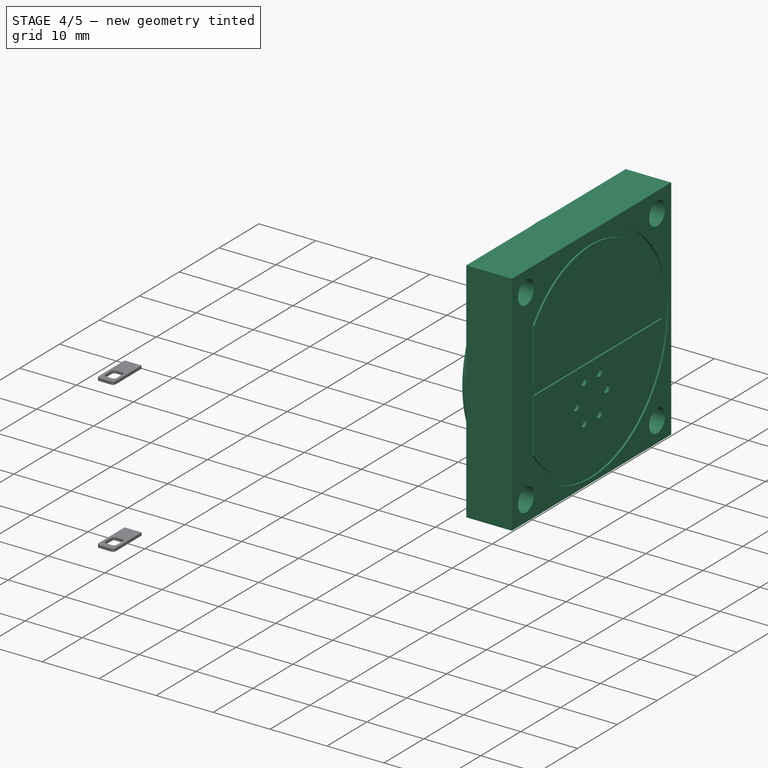
[diagram: stage 4 of 5 — iso view after this stage's code; geometry added in this stage tinted green]
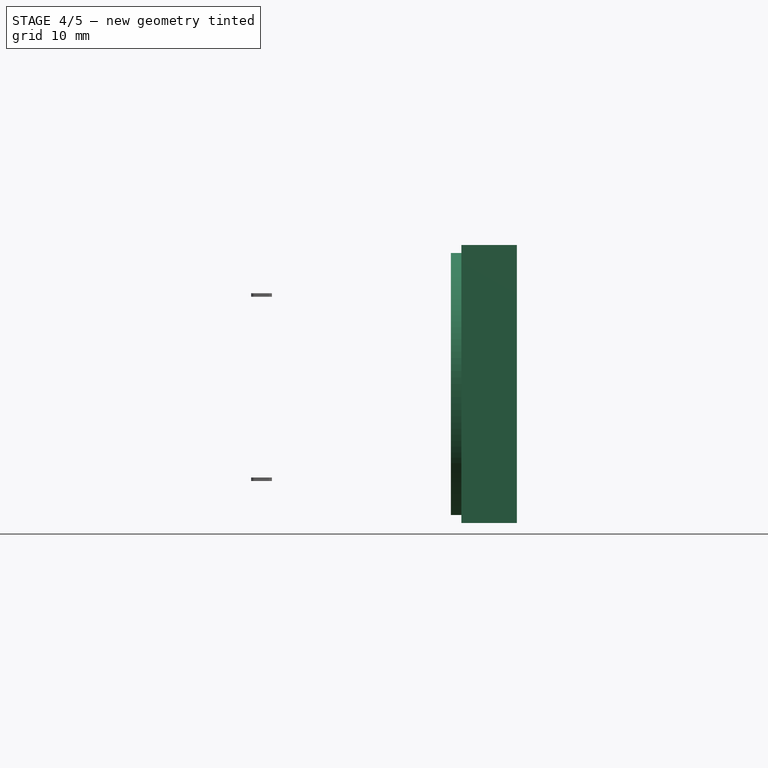
[diagram: stage 4 of 5 — front view after this stage's code; geometry added in this stage tinted green]
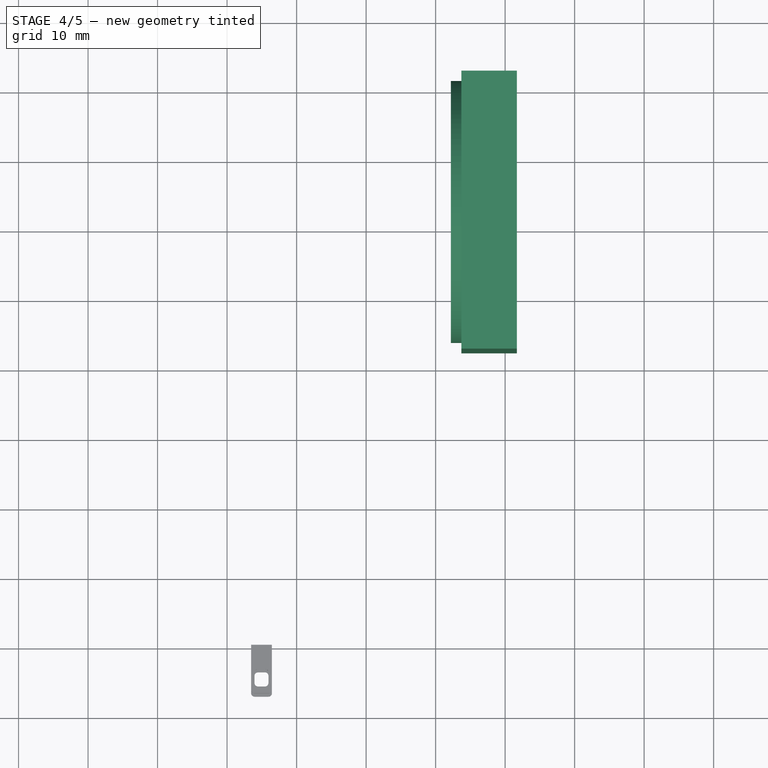
[diagram: stage 4 of 5 — top view after this stage's code; geometry added in this stage tinted green]
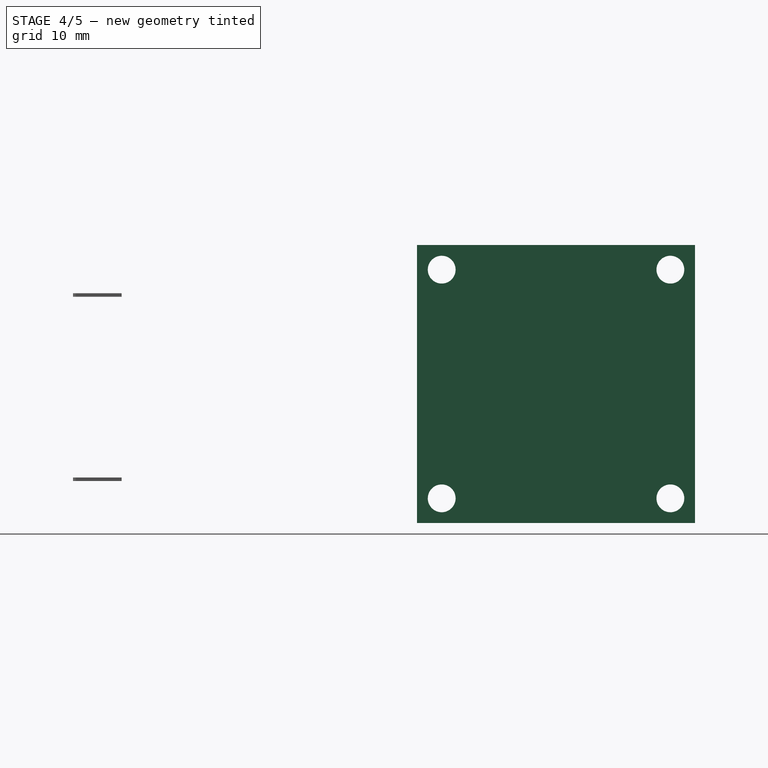
[diagram: stage 4 of 5 — right view after this stage's code; geometry added in this stage tinted green]
FEATURE [PartDesign::Body] Body001  label="Tapa"
  Group = -> [ShapeBinder,DatumPlane,Sketch019,Pad007]
  Origin = -> Origin002
  Tip = -> Pad007
FEATURE [PartDesign::Plane] DatumPlane001
  AttachmentOffset = pos=(0,0,53.7) rot=(0,0,1;0rad)
  Length = 91.6951
  MapMode = 5
  Placement = pos=(53.7,-1.19e-14,1.19e-14) rot=(0.57735,0.57735,0.57735;2.0944rad)
  ResizeMode = 0
  Support = -> [YZ_Plane003]
  Width = 79.1951
FEATURE [PartDesign::ShapeBinder] ShapeBinder001
  Support = -> [Pocket006]
  TraceSupport = false
FEATURE [Sketcher::SketchObject] Sketch020
  ExternalGeometry = -> [ShapeBinder001]
  FullyConstrained = true
  MapMode = 5
  Placement = pos=(53.7,-1.19e-14,1.19e-14) rot=(0.57735,0.57735,0.57735;2.0944rad)
  Support = -> [DatumPlane001]
  sketch-geometry (8):
    g0: LineSegment StartX=12.5 StartY=40 StartZ=0 EndX=52.5 EndY=40 EndZ=0
    g1: LineSegment StartX=52.5 StartY=40 StartZ=0 EndX=52.5 EndY=-2.9772e-12 EndZ=0
    g2: LineSegment StartX=52.5 StartY=-2.9772e-12 StartZ=0 EndX=12.5 EndY=-2.9772e-12 EndZ=0
    g3: LineSegment StartX=12.5 StartY=-2.9772e-12 StartZ=0 EndX=12.5 EndY=40 EndZ=0
    g4: Circle CenterX=16.05 CenterY=36.45 CenterZ=0 NormalX=0 NormalY=0 NormalZ=1 AngleXU=0 Radius=2
    g5: Circle CenterX=48.95 CenterY=36.45 CenterZ=0 NormalX=0 NormalY=0 NormalZ=1 AngleXU=0 Radius=2
    g6: Circle CenterX=48.95 CenterY=3.55 CenterZ=0 NormalX=0 NormalY=0 NormalZ=1 AngleXU=0 Radius=2
    g7: Circle CenterX=16.05 CenterY=3.55 CenterZ=0 NormalX=0 NormalY=0 NormalZ=1 AngleXU=0 Radius=2
  constraints (21):
    c: DistanceX(g-6,g-5) = 40
    c: DistanceY(g-5,g-5) = 37.3
    c: Coincident(g0,g1)
    c: Coincident(g1,g2)
    c: Coincident(g2,g3)
    c: Coincident(g3,g0)
    c: Horizontal(g2)
    c: Vertical(g1)
    c: Vertical(g3)
    c: Coincident(g0,g-6)
    c: Coincident(g0,g-5)
    c: Equal(g1,g0)
    c: Coincident(g4,g-9)
    c: Coincident(g5,g-8)
    c: Coincident(g6,g-11)
    c: Coincident(g7,g-10)
    c: Equal(g4,g5)
    c: Equal(g5,g7)
    c: Equal(g7,g6)
    c: Diameter(g7) = 4
    c: DistanceX(g-4,g-5) = 20
FEATURE [PartDesign::Pad] Pad008
  Direction = (1,-1e-16,1e-16)
  Length = 8
  Length2 = 100
  Placement = pos=(53.7,-1.2e-14,1.2e-14) rot=(0.57735,0.57735,0.57735;2.0944rad)
  Profile = -> Sketch020
  ReferenceAxis = -> Sketch020 [N_Axis]
  Type = 0
FEATURE [Sketcher::SketchObject] Sketch021
  ExternalGeometry = -> [Pad008]
  FullyConstrained = true
  MapMode = 5
  Placement = pos=(53.7,-1.2e-14,1.2e-14) rot=(0.57735,0.57735,-0.57735;4.18879rad)
  Support = -> [Pad008]
  sketch-geometry (1):
    g0: Circle CenterX=32.5 CenterY=-20 CenterZ=0 NormalX=0 NormalY=0 NormalZ=1 AngleXU=0 Radius=18.85
  constraints (3):
    c: Diameter(g0) = 37.7
    c: DistanceY(g-4,g0) = 20
    c: DistanceX(g0,g-3) = 20
FEATURE [PartDesign::Pad] Pad009
  BaseFeature = -> Pad008
  Direction = (-1,-1e-16,1e-16)
  Length = 1.5
  Length2 = 100
  Placement = pos=(53.7,-1.2e-14,1.2e-14) rot=(0.57735,0.57735,0.57735;2.0944rad)
  Profile = -> Sketch021
  ReferenceAxis = -> Sketch021 [N_Axis]
  Type = 0
FEATURE [Sketcher::SketchObject] Sketch022
  ExternalGeometry = -> [Pad009]
  FullyConstrained = true
  MapMode = 5
  Placement = pos=(52.2,-1.22e-14,1.23e-14) rot=(-0.57735,-0.57735,0.57735;2.0944rad)
  Support = -> [Pad009]
  sketch-geometry (1):
    g0: Circle CenterX=32.5 CenterY=-20 CenterZ=0 NormalX=0 NormalY=0 NormalZ=1 AngleXU=0 Radius=13
  constraints (2):
    c: Coincident(g0,g-3)
    c: Diameter(g0) = 26
FEATURE [PartDesign::Pocket] Pocket007
  BaseFeature = -> Pad009
  Direction = (1,1e-16,-1e-16)
  Length = 5
  Length2 = 100
  Placement = pos=(53.7,-1.2e-14,1.2e-14) rot=(0.57735,0.57735,0.57735;2.0944rad)
  Profile = -> Sketch022
  ReferenceAxis = -> Sketch022 [N_Axis]
  Type = 0
FEATURE [PartDesign::Chamfer] Chamfer001
  Angle = 45
  Base = -> Pocket007 [Edge28]
  BaseFeature = -> Pocket007
  ChamferType = 0
  FlipDirection = false
  Placement = pos=(53.7,-1.2e-14,1.2e-14) rot=(0.57735,0.57735,0.57735;2.0944rad)
  Size = 4
  Size2 = 1
  SupportTransform = false
FEATURE [Sketcher::SketchObject] Sketch023
  ExternalGeometry = -> [Chamfer001]
  FullyConstrained = false
  MapMode = 5
  Placement = pos=(57.2,-1.14e-14,1.09e-14) rot=(-0.57735,-0.57735,0.57735;2.0944rad)
  Support = -> [Chamfer001]
  sketch-geometry (15):
    g0: LineSegment StartX=32.5 StartY=-20 StartZ=0 EndX=32.5 EndY=-7.54335 EndZ=0
    g1: LineSegment StartX=36.3 StartY=-26.5 StartZ=0 EndX=34.4 EndY=-23.2091 EndZ=0
    g2: LineSegment StartX=34.4 StartY=-23.2091 StartZ=0 EndX=30.6 EndY=-23.2091 EndZ=0
    g3: LineSegment StartX=30.6 StartY=-23.2091 StartZ=0 EndX=28.7 EndY=-26.5 EndZ=0
    g4: LineSegment StartX=28.7 StartY=-26.5 StartZ=0 EndX=30.6 EndY=-29.7909 EndZ=0
    g5: LineSegment StartX=30.6 StartY=-29.7909 StartZ=0 EndX=34.4 EndY=-29.7909 EndZ=0
    g6: LineSegment StartX=34.4 StartY=-29.7909 StartZ=0 EndX=36.3 EndY=-26.5 EndZ=0
    g7: Circle CenterX=32.5 CenterY=-26.5 CenterZ=0 NormalX=0 NormalY=0 NormalZ=1 AngleXU=0 Radius=3.8
    g8: LineSegment StartX=32.5 StartY=-26.5 StartZ=0 EndX=32.5 EndY=-29.7909 EndZ=0
    g9: Circle CenterX=30.6 CenterY=-23.2091 CenterZ=0 NormalX=0 NormalY=0 NormalZ=1 AngleXU=0 Radius=0.7
    g10: Circle CenterX=28.7 CenterY=-26.5 CenterZ=0 NormalX=0 NormalY=0 NormalZ=1 AngleXU=0 Radius=0.7
    g11: Circle CenterX=30.6 CenterY=-29.7909 CenterZ=0 NormalX=0 NormalY=0 NormalZ=1 AngleXU=0 Radius=0.7
    g12: Circle CenterX=36.3 CenterY=-26.5 CenterZ=0 NormalX=0 NormalY=0 NormalZ=1 AngleXU=0 Radius=0.7
    g13: Circle CenterX=34.4 CenterY=-29.7909 CenterZ=0 NormalX=0 NormalY=0 NormalZ=1 AngleXU=0 Radius=0.7
    g14: Circle CenterX=34.4 CenterY=-23.2091 CenterZ=0 NormalX=0 NormalY=0 NormalZ=1 AngleXU=0 Radius=0.7
  constraints (34):
    c: Coincident(g0,g-3)
    c: Vertical(g0)
    c: Coincident(g1,g2)
    c: Coincident(g2,g3)
    c: Coincident(g3,g4)
    c: Coincident(g4,g5)
    c: Coincident(g5,g6)
    c: Coincident(g6,g1)
    c: Equal(g1, g2-g6) x5
    c: PointOnObject(g1,g7)
    c: PointOnObject(g2,g7)
    c: PointOnObject(g3,g7)
    c: PointOnObject(g4,g7)
    c: PointOnObject(g5,g7)
    c: PointOnObject(g6,g7)
    c: Horizontal(g5)
    c: Coincident(g8,g7)
    c: PointOnObject(g8,g5)
    c: Vertical(g8)
    c: PointOnObject(g8,g0)
    c: Coincident(g9,g2)
    c: Coincident(g10,g3)
    c: Coincident(g11,g4)
    c: Coincident(g12,g1)
    c: Coincident(g13,g5)
    c: Coincident(g14,g1)
    c: Equal(g12,g9)
    c: Equal(g9,g14)
    c: Equal(g14,g11)
    c: Equal(g11,g13)
    c: Equal(g13,g10)
    c: Diameter(g12) = 1.4
    c: DistanceX(g5,g5) = 3.8
    c: DistanceY(g7,g0) = 6.5
FEATURE [PartDesign::Pocket] Pocket008
  BaseFeature = -> Chamfer001
  Direction = (1,2e-16,-4e-16)
  Length = 1
  Length2 = 100
  Placement = pos=(53.7,-1.2e-14,1.2e-14) rot=(0.57735,0.57735,0.57735;2.0944rad)
  Profile = -> Sketch023
  ReferenceAxis = -> Sketch023 [N_Axis]
  Type = 0
FEATURE [Sketcher::SketchObject] Sketch024
  ExternalGeometry = -> [Pocket008]
  FullyConstrained = false
  MapMode = 5
  Placement = pos=(61.7,-1.2e-14,1.34e-14) rot=(0.57735,0.57735,0.57735;2.0944rad)
  Support = -> [Pocket008]
  sketch-geometry (13):
    g0: LineSegment StartX=12.5 StartY=40 StartZ=0 EndX=52.5 EndY=-2.9701e-12 EndZ=0
    g1: LineSegment StartX=12.5 StartY=-2.9763e-12 StartZ=0 EndX=52.5 EndY=40 EndZ=0
    g2: GeomPoint X=32.5 Y=20 Z=0
    g3: LineSegment StartX=32.5 StartY=-1.67996 StartZ=0 EndX=32.5 EndY=41.975 EndZ=0
    g4: LineSegment StartX=32.5 StartY=20 StartZ=0 EndX=10.6949 EndY=20 EndZ=0
    g5: LineSegment StartX=18.1 StartY=20.75 StartZ=0 EndX=50.1841 EndY=20.75 EndZ=0
    g6: LineSegment StartX=50.1841 StartY=19.25 StartZ=0 EndX=18.1 EndY=19.25 EndZ=0
    g7: LineSegment StartX=18.1 StartY=20.75 StartZ=0 EndX=18.1 EndY=30.2922 EndZ=0
    g8: LineSegment StartX=18.1 StartY=19.25 StartZ=0 EndX=18.1 EndY=9.70777 EndZ=0
    g9: LineSegment StartX=16.6 StartY=30.7624 StartZ=0 EndX=16.6 EndY=9.23757 EndZ=0
    g10: ArcOfCircle CenterX=32.5 CenterY=20 CenterZ=0 NormalX=0 NormalY=0 NormalZ=1 AngleXU=0 Radius=17.7 StartAngle=0.0423856 EndAngle=2.52104
    g11: ArcOfCircle CenterX=32.5 CenterY=20 CenterZ=0 NormalX=0 NormalY=0 NormalZ=1 AngleXU=0 Radius=19.2 StartAngle=3.73663 EndAngle=8.82974
    g12: ArcOfCircle CenterX=32.5 CenterY=20 CenterZ=0 NormalX=0 NormalY=0 NormalZ=1 AngleXU=0 Radius=17.7 StartAngle=3.76214 EndAngle=6.2408
  constraints (33):
    c: Coincident(g0,g-3)
    c: Coincident(g0,g-4)
    c: Coincident(g1,g-3)
    c: Coincident(g1,g-4)
    c: PointOnObject(g2,g0)
    c: PointOnObject(g2,g1)
    c: Vertical(g3)
    c: Horizontal(g4)
    c: Horizontal(g5)
    c: Horizontal(g6)
    c: Coincident(g7,g5)
    c: Vertical(g7)
    c: Coincident(g8,g6)
    c: Vertical(g8)
    c: Vertical(g9)
    c: Coincident(g10,g2)
    c: Coincident(g11,g10)
    c: Diameter(g11) = 38.4
    c: Diameter(g10) = 35.4
    c: PointOnObject(g8,g10)
    c: Vertical(g6,g5)
    c: Vertical(g6,g5)
    c: DistanceY(g6,g5) = 1.5
    c: DistanceX(g9,g7) = 1.5
    c: Coincident(g12,g6)
    c: Coincident(g10,g5)
    c: Coincident(g11,g9)
    c: Equal(g10,g12)
    c: Coincident(g10,g12)
    c: PointOnObject(g12,g8)
    c: Coincident(g10,g7)
    c: Coincident(g11,g9)
    c: DistanceX(g0,g9) = 4.1
FEATURE [PartDesign::Pocket] Pocket009
  BaseFeature = -> Pocket008
  Direction = (-1,0,2e-16)
  Length = 0.3
  Length2 = 100
  Placement = pos=(53.7,-1.2e-14,1.2e-14) rot=(0.57735,0.57735,0.57735;2.0944rad)
  Profile = -> Sketch024
  ReferenceAxis = -> Sketch024 [N_Axis]
  Type = 0
FEATURE [Sketcher::SketchObject] Sketch025
  ExternalGeometry = -> [Pocket009]
  FullyConstrained = false
  MapMode = 5
  Placement = pos=(61.7,-1.2e-14,1.34e-14) rot=(0.57735,0.57735,0.57735;2.0944rad)
  Support = -> [Pocket009]
  sketch-geometry (14):
    g0: LineSegment StartX=32.5 StartY=20 StartZ=0 EndX=32.5 EndY=5.56459 EndZ=0
    g1: LineSegment StartX=36.3 StartY=13.5 StartZ=0 EndX=34.4 EndY=16.7909 EndZ=0
    g2: LineSegment StartX=34.4 StartY=16.7909 StartZ=0 EndX=30.6 EndY=16.7909 EndZ=0
    g3: LineSegment StartX=30.6 StartY=16.7909 StartZ=0 EndX=28.7 EndY=13.5 EndZ=0
    g4: LineSegment StartX=28.7 StartY=13.5 StartZ=0 EndX=30.6 EndY=10.2091 EndZ=0
    g5: LineSegment StartX=30.6 StartY=10.2091 StartZ=0 EndX=34.4 EndY=10.2091 EndZ=0
    g6: LineSegment StartX=34.4 StartY=10.2091 StartZ=0 EndX=36.3 EndY=13.5 EndZ=0
    g7: Circle CenterX=32.5 CenterY=13.5 CenterZ=0 NormalX=0 NormalY=0 NormalZ=1 AngleXU=0 Radius=3.8
    g8: Circle CenterX=28.7 CenterY=13.5 CenterZ=0 NormalX=0 NormalY=0 NormalZ=1 AngleXU=0 Radius=0.7
    g9: Circle CenterX=30.6 CenterY=10.2091 CenterZ=0 NormalX=0 NormalY=0 NormalZ=1 AngleXU=0 Radius=0.7
    g10: Circle CenterX=34.4 CenterY=10.2091 CenterZ=0 NormalX=0 NormalY=0 NormalZ=1 AngleXU=0 Radius=0.7
    g11: Circle CenterX=36.3 CenterY=13.5 CenterZ=0 NormalX=0 NormalY=0 NormalZ=1 AngleXU=0 Radius=0.7
    g12: Circle CenterX=34.4 CenterY=16.7909 CenterZ=0 NormalX=0 NormalY=0 NormalZ=1 AngleXU=0 Radius=0.7
    g13: Circle CenterX=30.6 CenterY=16.7909 CenterZ=0 NormalX=0 NormalY=0 NormalZ=1 AngleXU=0 Radius=0.7
  constraints (31):
    c: Coincident(g0,g-3)
    c: Vertical(g0)
    c: Coincident(g1,g2)
    c: Coincident(g2,g3)
    c: Coincident(g3,g4)
    c: Coincident(g4,g5)
    c: Coincident(g5,g6)
    c: Coincident(g6,g1)
    c: Equal(g1, g2-g6) x5
    c: PointOnObject(g1,g7)
    c: PointOnObject(g2,g7)
    c: PointOnObject(g3,g7)
    c: PointOnObject(g4,g7)
    c: PointOnObject(g5,g7)
    c: PointOnObject(g6,g7)
    c: Horizontal(g5)
    c: PointOnObject(g7,g0)
    c: Coincident(g8,g3)
    c: Coincident(g9,g4)
    c: Coincident(g10,g5)
    c: Coincident(g11,g1)
    c: Coincident(g12,g1)
    c: Coincident(g13,g2)
    c: Equal(g13,g8)
    c: Equal(g8,g9)
    c: Equal(g9,g10)
    c: Equal(g10,g11)
    c: Equal(g11,g12)
    c: Diameter(g12) = 1.4
    c: DistanceX(g5,g5) = 3.8
    c: DistanceY(g7,g0) = 6.5
FEATURE [PartDesign::Pocket] Pocket010
  BaseFeature = -> Pocket009
  Direction = (-1,1e-16,3e-16)
  Length = 0.5
  Length2 = 100
  Placement = pos=(53.7,-1.2e-14,1.2e-14) rot=(0.57735,0.57735,0.57735;2.0944rad)
  Profile = -> Sketch025
  ReferenceAxis = -> Sketch025 [N_Axis]
  Type = 0
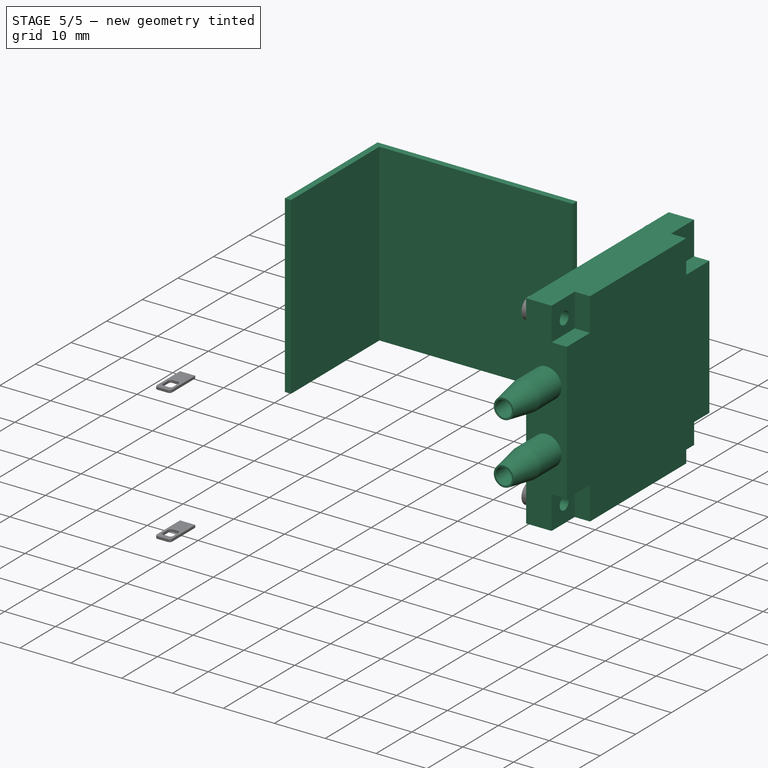
[diagram: stage 5 of 5 — iso view after this stage's code; geometry added in this stage tinted green]
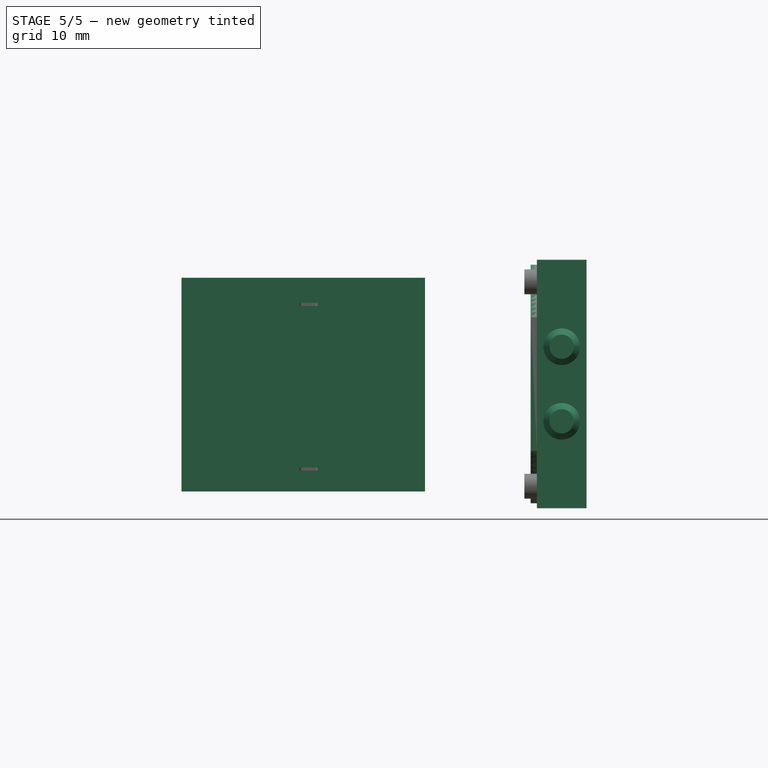
[diagram: stage 5 of 5 — front view after this stage's code; geometry added in this stage tinted green]
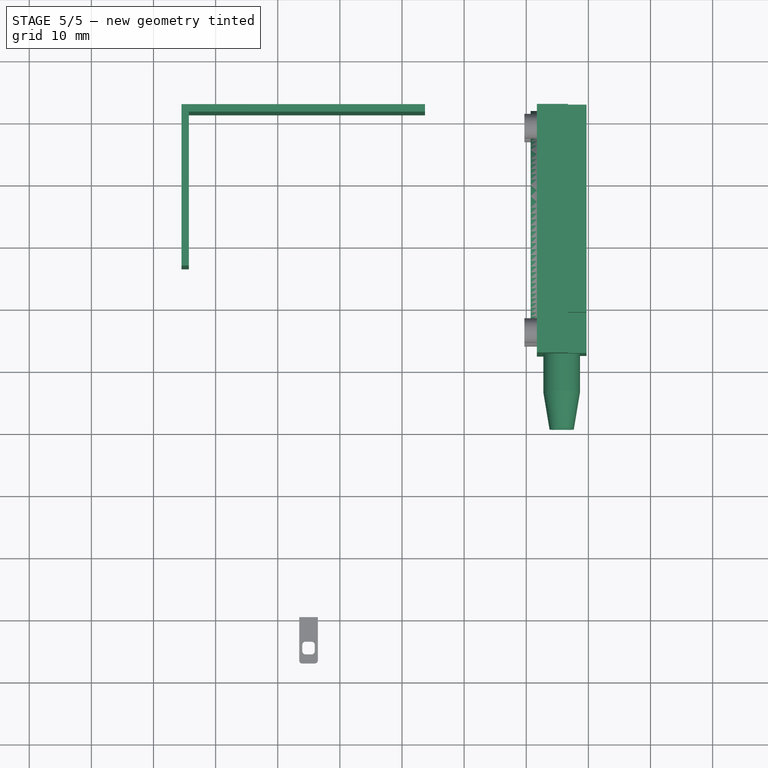
[diagram: stage 5 of 5 — top view after this stage's code; geometry added in this stage tinted green]
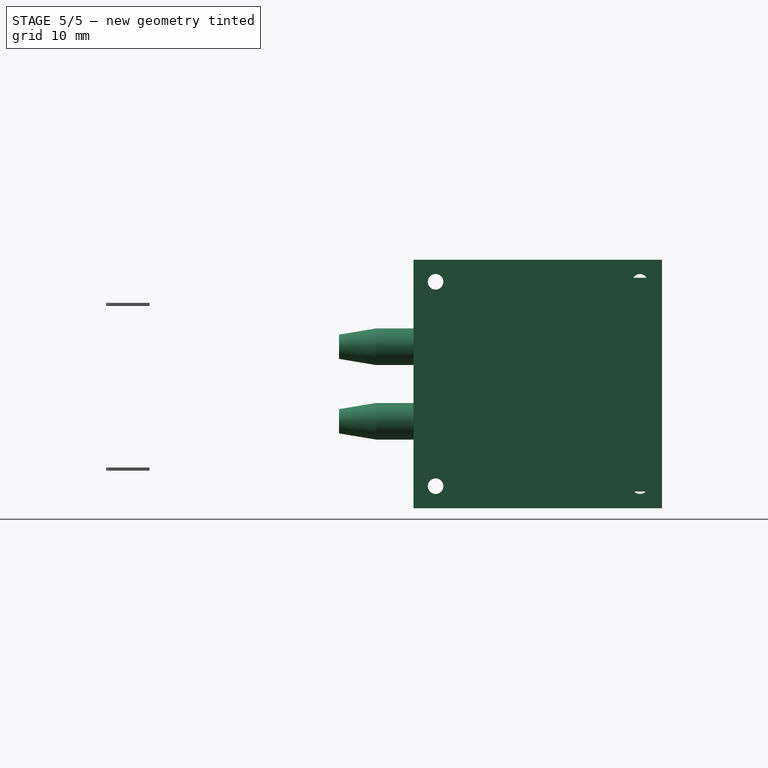
[diagram: stage 5 of 5 — right view after this stage's code; geometry added in this stage tinted green]
FEATURE [PartDesign::Body] Body  label="Base"
  Group = -> [Sketch,Pad,Sketch001,Pad001,Sketch009,Pocket,Sketch010,Pocket001,Sketch011,Pocket002,Sketch012,Pocket003,Sketch013,Pad004,Sketch014,Pocket004,Sketch015,Pad005,Sketch016,Pad006,Chamfer,Sketch017,Pocket005,Sketch018,Pocket006]
  Origin = -> Origin001
  Tip = -> Pocket006
FEATURE [PartDesign::ShapeBinder] ShapeBinder
  Support = -> [Pocket006]
  TraceSupport = false
FEATURE [PartDesign::Plane] DatumPlane
  AttachmentOffset = pos=(0,0,2.7) rot=(0,0,1;0rad)
  Length = 83.2935
  MapMode = 2
  Placement = pos=(0,0,2.7) rot=(0,0,1;0rad)
  ResizeMode = 0
  Support = -> [XY_Plane002]
  Width = 92.0935
FEATURE [Sketcher::SketchObject] Sketch019
  ExternalGeometry = -> [ShapeBinder]
  FullyConstrained = true
  MapMode = 5
  Placement = pos=(0,0,2.7) rot=(0,0,1;0rad)
  Support = -> [DatumPlane]
  sketch-geometry (6):
    g0: LineSegment StartX=4.5 StartY=26.5 StartZ=0 EndX=5.7 EndY=26.5 EndZ=0
    g1: LineSegment StartX=5.7 StartY=26.5 StartZ=0 EndX=5.7 EndY=51.3 EndZ=0
    g2: LineSegment StartX=5.7 StartY=51.3 StartZ=0 EndX=43.7 EndY=51.3 EndZ=0
    g3: LineSegment StartX=43.7 StartY=51.3 StartZ=0 EndX=43.7 EndY=52.5 EndZ=0
    g4: LineSegment StartX=43.7 StartY=52.5 StartZ=0 EndX=4.5 EndY=52.5 EndZ=0
    g5: LineSegment StartX=4.5 StartY=52.5 StartZ=0 EndX=4.5 EndY=26.5 EndZ=0
  constraints (12):
    c: Coincident(g-8,g0)
    c: Coincident(g0,g-8)
    c: Coincident(g0,g1)
    c: Coincident(g1,g-4)
    c: Coincident(g1,g2)
    c: Coincident(g2,g-4)
    c: Coincident(g2,g3)
    c: Coincident(g3,g-5)
    c: Coincident(g3,g4)
    c: Coincident(g4,g-7)
    c: Coincident(g4,g5)
    c: Coincident(g5,g0)
FEATURE [PartDesign::Pad] Pad007
  Direction = (0,0,1)
  Length = 34.4
  Length2 = 100
  Placement = pos=(0,0,2.7) rot=(0,0,1;0rad)
  Profile = -> Sketch019
  ReferenceAxis = -> Sketch019 [N_Axis]
  Type = 0
FEATURE [PartDesign::Body] Body002  label="Middle"
  Group = -> [DatumPlane001,ShapeBinder001,Sketch020,Pad008,Sketch021,Pad009,Sketch022,Pocket007,Chamfer001,Sketch023,Pocket008,Sketch024,Pocket009,Sketch025,Pocket010]
  Origin = -> Origin003
  Tip = -> Pocket010
FEATURE [PartDesign::Plane] DatumPlane002
  AttachmentOffset = pos=(0,0,61.7) rot=(0,0,1;0rad)
  Length = 91.6951
  MapMode = 5
  Placement = pos=(61.7,-1.37e-14,1.37e-14) rot=(0.57735,0.57735,0.57735;2.0944rad)
  ResizeMode = 0
  Support = -> [YZ_Plane004]
  Width = 79.1951
FEATURE [PartDesign::ShapeBinder] ShapeBinder002
  Support = -> [Pocket010]
  TraceSupport = false
FEATURE [Sketcher::SketchObject] Sketch026
  FullyConstrained = true
  MapMode = 5
  Placement = pos=(61.7,-1.37e-14,1.37e-14) rot=(0.57735,0.57735,0.57735;2.0944rad)
  Support = -> [DatumPlane002]
FEATURE [Sketcher::SketchObject] Sketch027
  ExternalGeometry = -> [ShapeBinder002]
  FullyConstrained = true
  MapMode = 5
  Placement = pos=(61.7,-1.37e-14,1.37e-14) rot=(0.57735,0.57735,0.57735;2.0944rad)
  Support = -> [DatumPlane002]
  sketch-geometry (8):
    g0: Circle CenterX=16.05 CenterY=36.45 CenterZ=0 NormalX=0 NormalY=0 NormalZ=1 AngleXU=0 Radius=1.25
    g1: Circle CenterX=48.95 CenterY=36.45 CenterZ=0 NormalX=0 NormalY=0 NormalZ=1 AngleXU=0 Radius=1.25
    g2: Circle CenterX=48.95 CenterY=3.55 CenterZ=0 NormalX=0 NormalY=0 NormalZ=1 AngleXU=0 Radius=1.25
    g3: Circle CenterX=16.05 CenterY=3.55 CenterZ=0 NormalX=0 NormalY=0 NormalZ=1 AngleXU=0 Radius=1.25
    g4: LineSegment StartX=12.5 StartY=40 StartZ=0 EndX=52.5 EndY=40 EndZ=0
    g5: LineSegment StartX=52.5 StartY=40 StartZ=0 EndX=52.5 EndY=0 EndZ=0
    g6: LineSegment StartX=52.5 StartY=0 StartZ=0 EndX=12.5 EndY=0 EndZ=0
    g7: LineSegment StartX=12.5 StartY=0 StartZ=0 EndX=12.5 EndY=40 EndZ=0
  constraints (18):
    c: Coincident(g0,g-8)
    c: Coincident(g1,g-7)
    c: Coincident(g2,g-6)
    c: Coincident(g3,g-5)
    c: Equal(g3,g0)
    c: Equal(g0,g1)
    c: Equal(g1,g2)
    c: Diameter(g1) = 2.5
    c: Coincident(g4,g5)
    c: Coincident(g5,g6)
    c: Coincident(g6,g7)
    c: Coincident(g7,g4)
    c: Horizontal(g4)
    c: Horizontal(g6)
    c: Vertical(g5)
    c: Vertical(g7)
    c: Coincident(g4,g-3)
    c: Coincident(g5,g-4)
FEATURE [PartDesign::Pad] Pad010
  Direction = (1,-1e-16,1e-16)
  Length = 8
  Length2 = 100
  Placement = pos=(61.7,-1.4e-14,1.4e-14) rot=(0.57735,0.57735,0.57735;2.0944rad)
  Profile = -> Sketch027
  ReferenceAxis = -> Sketch027 [N_Axis]
  Type = 0
FEATURE [Sketcher::SketchObject] Sketch028
  ExternalGeometry = -> [Pad010]
  FullyConstrained = true
  MapMode = 5
  Placement = pos=(69.7,-1.4e-14,1.54e-14) rot=(0.57735,0.57735,0.57735;2.0944rad)
  Support = -> [Pad010]
  sketch-geometry (16):
    g0: LineSegment StartX=12.5 StartY=40 StartZ=0 EndX=19 EndY=40 EndZ=0
    g1: LineSegment StartX=19 StartY=40 StartZ=0 EndX=19 EndY=33.5 EndZ=0
    g2: LineSegment StartX=19 StartY=33.5 StartZ=0 EndX=12.5 EndY=33.5 EndZ=0
    g3: LineSegment StartX=12.5 StartY=33.5 StartZ=0 EndX=12.5 EndY=40 EndZ=0
    g4: LineSegment StartX=52.5 StartY=40 StartZ=0 EndX=46 EndY=40 EndZ=0
    g5: LineSegment StartX=46 StartY=40 StartZ=0 EndX=46 EndY=33.5 EndZ=0
    g6: LineSegment StartX=46 StartY=33.5 StartZ=0 EndX=52.5 EndY=33.5 EndZ=0
    g7: LineSegment StartX=52.5 StartY=33.5 StartZ=0 EndX=52.5 EndY=40 EndZ=0
    g8: LineSegment StartX=52.5 StartY=0 StartZ=0 EndX=46 EndY=0 EndZ=0
    g9: LineSegment StartX=46 StartY=0 StartZ=0 EndX=46 EndY=6.5 EndZ=0
    g10: LineSegment StartX=46 StartY=6.5 StartZ=0 EndX=52.5 EndY=6.5 EndZ=0
    g11: LineSegment StartX=52.5 StartY=6.5 StartZ=0 EndX=52.5 EndY=0 EndZ=0
    g12: LineSegment StartX=12.5 StartY=-9e-16 StartZ=0 EndX=19 EndY=-9e-16 EndZ=0
    g13: LineSegment StartX=19 StartY=-9e-16 StartZ=0 EndX=19 EndY=6.5 EndZ=0
    g14: LineSegment StartX=19 StartY=6.5 StartZ=0 EndX=12.5 EndY=6.5 EndZ=0
    g15: LineSegment StartX=12.5 StartY=6.5 StartZ=0 EndX=12.5 EndY=-9e-16 EndZ=0
  constraints (44):
    c: Coincident(g0,g1)
    c: Coincident(g1,g2)
    c: Coincident(g2,g3)
    c: Coincident(g3,g0)
    c: Horizontal(g0)
    c: Horizontal(g2)
    c: Vertical(g1)
    c: Vertical(g3)
    c: Coincident(g0,g-3)
    c: Coincident(g4,g5)
    c: Coincident(g5,g6)
    c: Coincident(g6,g7)
    c: Coincident(g7,g4)
    c: Horizontal(g4)
    c: Horizontal(g6)
    c: Vertical(g5)
    c: Vertical(g7)
    c: Coincident(g4,g-4)
    c: Coincident(g8,g9)
    c: Coincident(g9,g10)
    c: Coincident(g10,g11)
    c: Coincident(g11,g8)
    c: Horizontal(g8)
    c: Horizontal(g10)
    c: Vertical(g9)
    c: Vertical(g11)
    c: Coincident(g8,g-4)
    c: Coincident(g12,g13)
    c: Coincident(g13,g14)
    c: Coincident(g14,g15)
    c: Coincident(g15,g12)
    c: Horizontal(g12)
    c: Horizontal(g14)
    c: Vertical(g13)
    c: Vertical(g15)
    c: Coincident(g12,g-3)
    c: Equal(g13,g14)
    c: Equal(g14,g9)
    c: Equal(g9,g10)
    c: Equal(g10,g5)
    c: Equal(g5,g6)
    c: Equal(g6,g2)
    c: Equal(g2,g1)
    c: DistanceX(g6,g6) = 6.5
FEATURE [PartDesign::Pocket] Pocket011
  BaseFeature = -> Pad010
  Direction = (-1,-1e-16,1e-16)
  Length = 3
  Length2 = 100
  Placement = pos=(61.7,-1.4e-14,1.4e-14) rot=(0.57735,0.57735,0.57735;2.0944rad)
  Profile = -> Sketch028
  ReferenceAxis = -> Sketch028 [N_Axis]
  Type = 0
FEATURE [Sketcher::SketchObject] Sketch029
  ExternalGeometry = -> [Pocket011,ShapeBinder002]
  FullyConstrained = true
  MapMode = 5
  Placement = pos=(61.7,-1.4e-14,1.4e-14) rot=(0.57735,0.57735,-0.57735;4.18879rad)
  Support = -> [Pocket011]
  sketch-geometry (8):
    g0: ArcOfCircle CenterX=32.5 CenterY=-20 CenterZ=0 NormalX=0 NormalY=0 NormalZ=1 AngleXU=0 Radius=17.7 StartAngle=0.0423856 EndAngle=2.52104
    g1: ArcOfCircle CenterX=32.5 CenterY=-20 CenterZ=0 NormalX=0 NormalY=0 NormalZ=1 AngleXU=0 Radius=17.7 StartAngle=3.76214 EndAngle=6.2408
    g2: ArcOfCircle CenterX=32.5 CenterY=-20 CenterZ=0 NormalX=0 NormalY=0 NormalZ=1 AngleXU=0 Radius=19.2 StartAngle=3.73663 EndAngle=8.82974
    g3: LineSegment StartX=50.1841 StartY=-19.25 StartZ=0 EndX=18.1 EndY=-19.25 EndZ=0
    g4: LineSegment StartX=18.1 StartY=-19.25 StartZ=0 EndX=18.1 EndY=-9.70777 EndZ=0
    g5: LineSegment StartX=18.1 StartY=-30.2922 StartZ=0 EndX=18.1 EndY=-20.75 EndZ=0
    g6: LineSegment StartX=50.1841 StartY=-20.75 StartZ=0 EndX=18.1 EndY=-20.75 EndZ=0
    g7: LineSegment StartX=16.6 StartY=-30.7624 StartZ=0 EndX=16.6 EndY=-9.23757 EndZ=0
  constraints (20):
    c: Coincident(g0,g-11)
    c: Coincident(g0,g-8)
    c: Coincident(g0,g-9)
    c: Coincident(g1,g0)
    c: Coincident(g1,g-10)
    c: Coincident(g1,g-10)
    c: Coincident(g2,g0)
    c: Coincident(g2,g-12)
    c: Coincident(g2,g-12)
    c: Coincident(g3,g0)
    c: Coincident(g3,g-9)
    c: Coincident(g4,g3)
    c: Coincident(g4,g0)
    c: Coincident(g5,g1)
    c: Coincident(g5,g-7)
    c: Coincident(g6,g1)
    c: PointOnObject(g6,g5)
    c: Horizontal(g6)
    c: Coincident(g7,g2)
    c: Coincident(g7,g2)
FEATURE [PartDesign::Pad] Pad011
  BaseFeature = -> Pocket011
  Direction = (-1,1e-16,-1e-16)
  Length = 1
  Length2 = 100
  Placement = pos=(61.7,-1.4e-14,1.4e-14) rot=(0.57735,0.57735,0.57735;2.0944rad)
  Profile = -> Sketch029
  ReferenceAxis = -> Sketch029 [N_Axis]
  Type = 0
FEATURE [Sketcher::SketchObject] Sketch030
  ExternalGeometry = -> [ShapeBinder002]
  FullyConstrained = true
  MapMode = 5
  Placement = pos=(61.7,0,1.11e-14) rot=(0.57735,0.57735,0.57735;2.0944rad)
  Support = -> [ShapeBinder002]
  sketch-geometry (8):
    g0: Circle CenterX=16.05 CenterY=36.45 CenterZ=0 NormalX=0 NormalY=0 NormalZ=1 AngleXU=0 Radius=2
    g1: Circle CenterX=16.05 CenterY=3.55 CenterZ=0 NormalX=0 NormalY=0 NormalZ=1 AngleXU=0 Radius=2
    g2: Circle CenterX=48.95 CenterY=3.55 CenterZ=0 NormalX=0 NormalY=0 NormalZ=1 AngleXU=0 Radius=2
    g3: Circle CenterX=48.95 CenterY=36.45 CenterZ=0 NormalX=0 NormalY=0 NormalZ=1 AngleXU=0 Radius=2
    g4: Circle CenterX=48.95 CenterY=36.45 CenterZ=0 NormalX=0 NormalY=0 NormalZ=1 AngleXU=0 Radius=1.25
    g5: Circle CenterX=16.05 CenterY=36.45 CenterZ=0 NormalX=0 NormalY=0 NormalZ=1 AngleXU=0 Radius=1.25
    g6: Circle CenterX=48.95 CenterY=3.55 CenterZ=0 NormalX=0 NormalY=0 NormalZ=1 AngleXU=0 Radius=1.25
    g7: Circle CenterX=16.05 CenterY=3.55 CenterZ=0 NormalX=0 NormalY=0 NormalZ=1 AngleXU=0 Radius=1.25
  constraints (16):
    c: Coincident(g0,g-3)
    c: Coincident(g1,g-6)
    c: Coincident(g2,g-5)
    c: Coincident(g3,g-4)
    c: Coincident(g4,g3)
    c: Coincident(g5,g0)
    c: Coincident(g6,g2)
    c: Coincident(g7,g1)
    c: Equal(g0,g3)
    c: Equal(g3,g2)
    c: Equal(g2,g1)
    c: Equal(g7,g6)
    c: Equal(g6,g5)
    c: Equal(g5,g4)
    c: Diameter(g3) = 4
    c: Diameter(g4) = 2.5
FEATURE [PartDesign::Pad] Pad012
  BaseFeature = -> Pad011
  Direction = (1,0,-4e-16)
  Length = 2
  Length2 = 100
  Placement = pos=(61.7,-1.4e-14,1.4e-14) rot=(0.57735,0.57735,0.57735;2.0944rad)
  Profile = -> Sketch030
  ReferenceAxis = -> Sketch030 [N_Axis]
  Reversed = true
  Type = 0
FEATURE [Sketcher::SketchObject] Sketch031
  ExternalGeometry = -> [Pad012]
  FullyConstrained = false
  MapMode = 5
  Placement = pos=(61.7,12.5,1.68e-14) rot=(0.57735,0.57735,-0.57735;2.0944rad)
  Support = -> [Pad012]
  sketch-geometry (5):
    g0: LineSegment StartX=-36.75 StartY=4 StartZ=0 EndX=-4.23423 EndY=4 EndZ=0
    g1: Circle CenterX=-26 CenterY=4 CenterZ=0 NormalX=0 NormalY=0 NormalZ=1 AngleXU=0 Radius=2.95
    g2: Circle CenterX=-14 CenterY=4 CenterZ=0 NormalX=0 NormalY=0 NormalZ=1 AngleXU=0 Radius=2.95
    g3: Circle CenterX=-14 CenterY=4 CenterZ=0 NormalX=0 NormalY=0 NormalZ=1 AngleXU=0 Radius=1.6
    g4: Circle CenterX=-26 CenterY=4 CenterZ=0 NormalX=0 NormalY=0 NormalZ=1 AngleXU=0 Radius=1.6
  constraints (13):
    c: Horizontal(g0)
    c: Symmetric(g-3,g-4,g0)
    c: PointOnObject(g1,g0)
    c: PointOnObject(g2,g0)
    c: Coincident(g3,g2)
    c: Coincident(g4,g1)
    c: Equal(g3,g4)
    c: Equal(g2,g1)
    c: DistanceX(g1,g2) = 12
    c: DistanceX(g-4,g-4) = 27
    c: DistanceX(g2,g-4) = 7.5
    c: Diameter(g4) = 3.2
    c: Diameter(g1) = 5.9
FEATURE [PartDesign::Pad] Pad013
  BaseFeature = -> Pad012
  Direction = (2e-16,-1,0)
  Length = 12
  Length2 = 100
  Placement = pos=(61.7,-1.4e-14,1.4e-14) rot=(0.57735,0.57735,0.57735;2.0944rad)
  Profile = -> Sketch031
  ReferenceAxis = -> Sketch031 [N_Axis]
  Type = 0
FEATURE [PartDesign::Chamfer] Chamfer002
  Angle = 45
  Base = -> Pad013 [Edge78,Edge80]
  BaseFeature = -> Pad013
  ChamferType = 1
  FlipDirection = false
  Placement = pos=(61.7,-1.4e-14,1.4e-14) rot=(0.57735,0.57735,0.57735;2.0944rad)
  Size = 6
  Size2 = 1
  SupportTransform = false
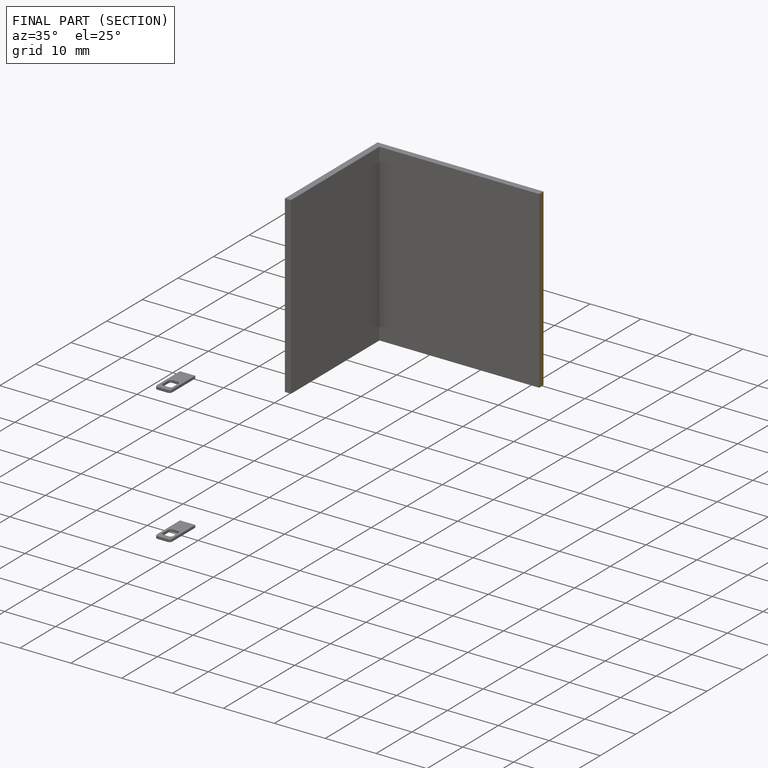
[diagram: finished part — half-section view (interior)]
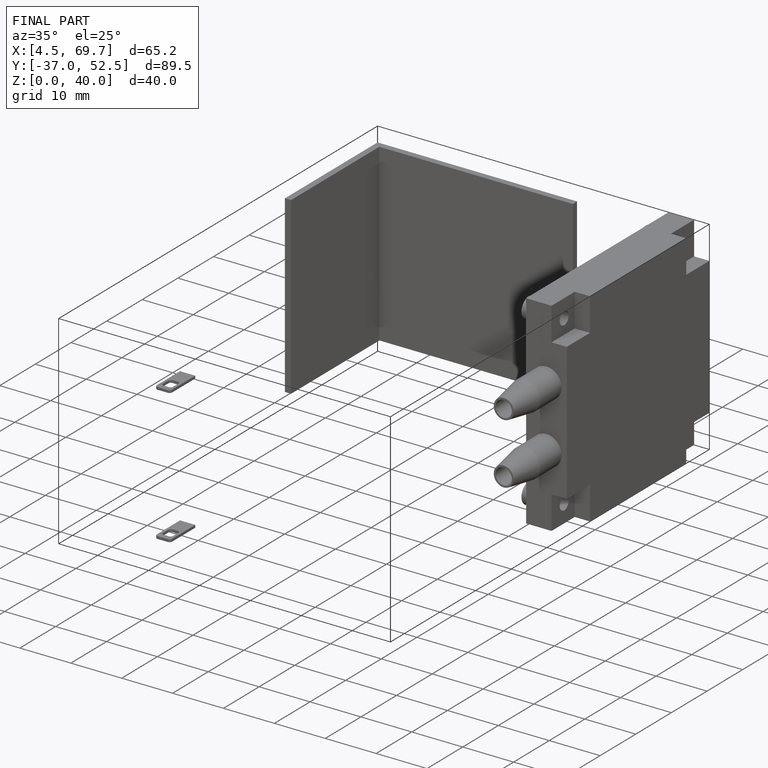
[diagram: finished part — iso view with bounding-box wireframe]
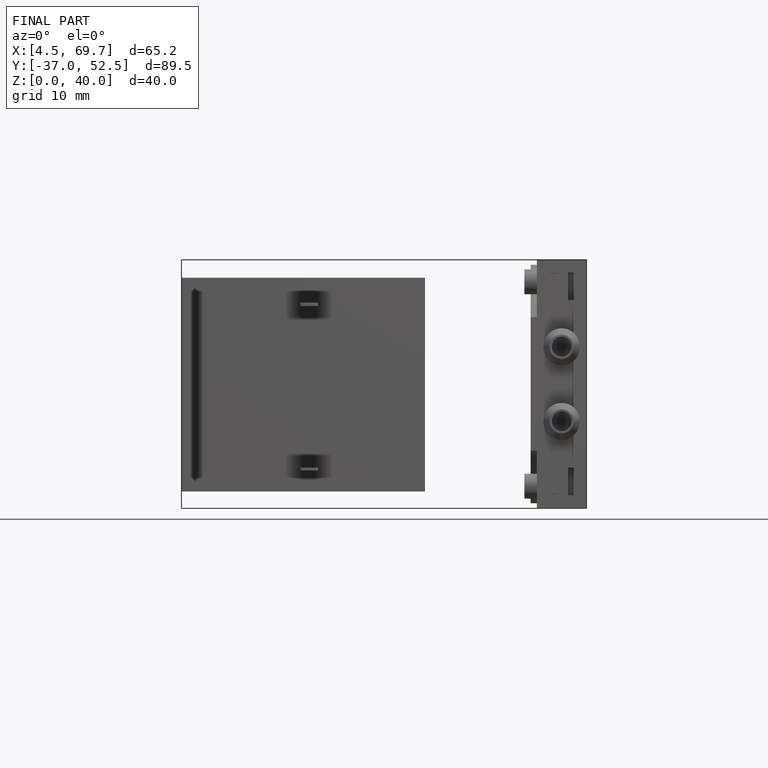
[diagram: finished part — front view with bounding-box wireframe]
